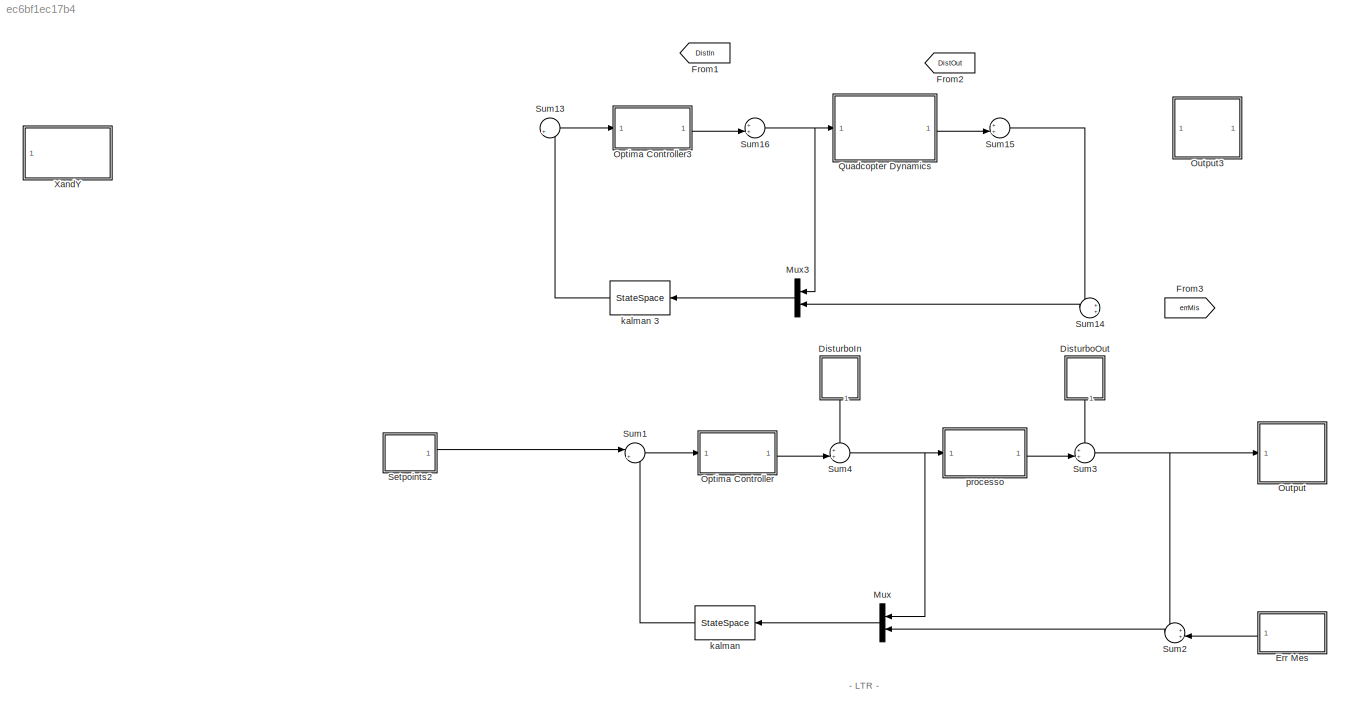
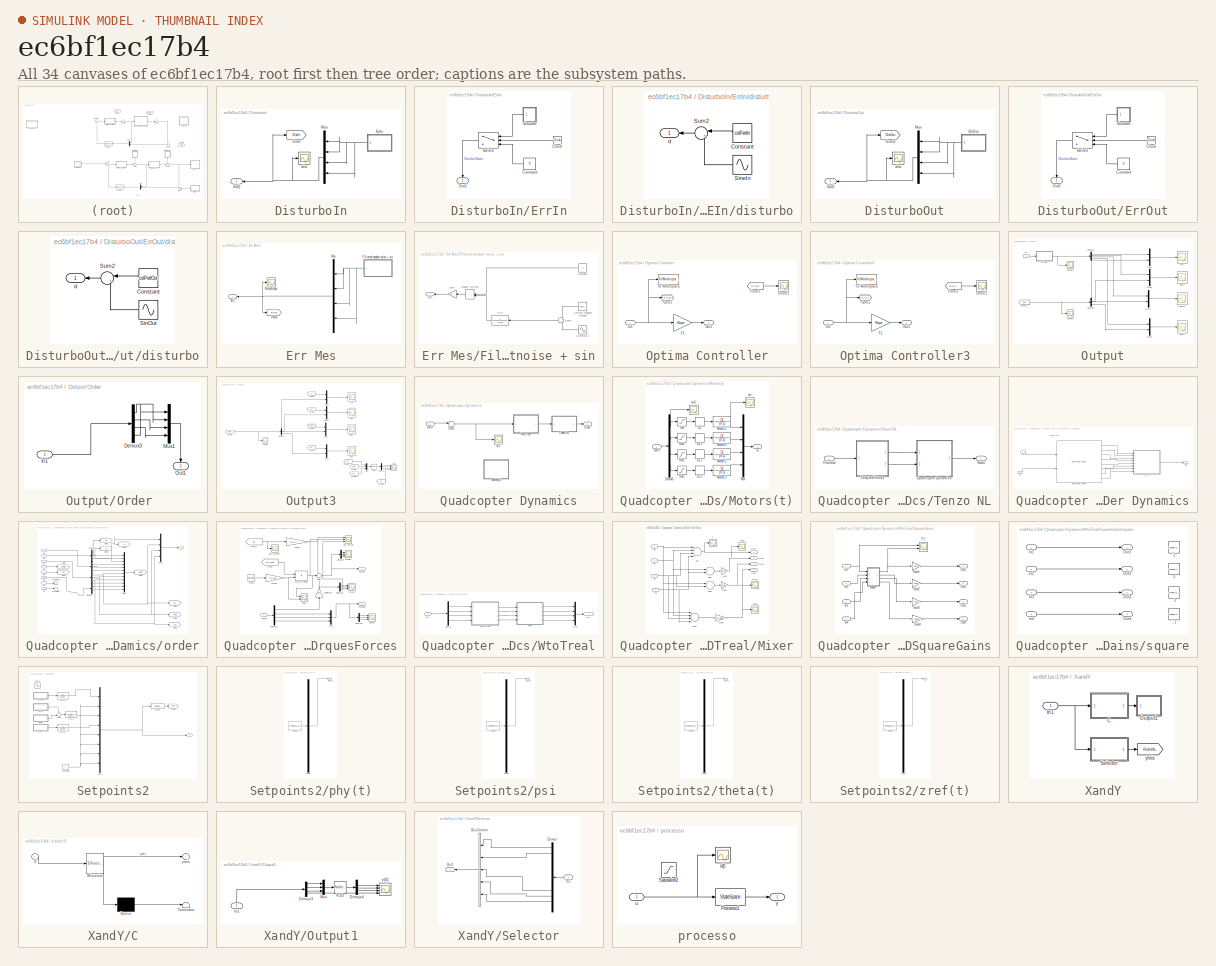
[diagram: thumbnail index - all 34 canvases of the model, root first then tree order]
MODEL slx_ec6bf1ec17b4
KIND model
CONFIG AbsTol = auto
CONFIG EnableMultiTasking = on
CONFIG FixedStep = auto
CONFIG MaxStep = auto
CONFIG MinStep = auto
CONFIG RelTol = 1e-3
CONFIG SampleTimeConstraint = Unconstrained
CONFIG Solver = ode45
CONFIG SolverName = ode45
CONFIG StartTime = 0.0
CONFIG StopTime = 10
BLOCK [StateSpace]  kalman 
  A = KAoss
  B = KBossw
  C = KCoss
  D = KDoss
  Ports = [1, 1]
  X0 = 0
BLOCK [StateSpace]  kalman 3
  A = KAoss
  B = KBossw
  C = KCoss
  D = KDoss
  Ports = [1, 1]
  X0 = 0
BLOCK [SubSystem] DisturboIn
  Ports = [0, 1]
  RequestExecContextInheritance = off
  Variant = off
BLOCK [SubSystem] DisturboIn/ErrIn
  Ports = [0, 1]
  RequestExecContextInheritance = off
  Variant = off
BLOCK [Clock] DisturboIn/ErrIn/Clock
BLOCK [Constant] DisturboIn/ErrIn/Constant
  Value = 0
BLOCK [Outport] DisturboIn/ErrIn/Out1
  IconDisplay = Port number
BLOCK [Switch] DisturboIn/ErrIn/Switch
  InputSameDT = off
  SaturateOnIntegerOverflow = off
  Threshold = 5
BLOCK [SubSystem] DisturboIn/ErrIn/disturbo
  Ports = [0, 1]
  RequestExecContextInheritance = off
  Variant = off
BLOCK [Constant] DisturboIn/ErrIn/disturbo/Constant
  Value = cstPertIn
BLOCK [Sin] DisturboIn/ErrIn/disturbo/SineIn
  Amplitude = amplitudePertIn
  Frequency = omegaPertIN
  Ports = [0, 1]
  SampleTime = 0
BLOCK [Sum] DisturboIn/ErrIn/disturbo/Sum2
  IconShape = round
  InputSameDT = off
  Inputs = |++
  OutDataTypeStr = Inherit: Inherit via internal rule
  Ports = [2, 1]
  SaturateOnIntegerOverflow = off
BLOCK [Outport] DisturboIn/ErrIn/disturbo/d
  IconDisplay = Port number
BLOCK [Goto] DisturboIn/Goto
  GotoTag = DistIn
  TagVisibility = global
BLOCK [Mux] DisturboIn/Mux
  DisplayOption = bar
  Inputs = [1 1 1 1]
  Ports = [4, 1]
BLOCK [Scope] DisturboIn/dist
  NumInputPorts = 1
  Ports = [1]
  ScopeSpecificationString = C++SS(StrPVP('Location','[71, 119, 1081, 656]'),StrPVP('Open','off'),MxPVP('AxesTitles',53,'struct(''axes1'',''%<SignalLabel>'')'),MxPVP('ScopeGraphics',56,'struct(''FigureColor'',''[0.5 0.5 0.5]'',''AxesColor'',''[0 0 0]'',''AxesTickColor'',''[1 1 1]'',''LineColors'',''[1 1 0;1 0 1;0 1 1;1 0 0;0 1 0;0 0 1]'',''LineStyles'',''-|-|-|-|-|-'',''LineWidths'',''[0.5 0.5 0.5 0.5 0.5 0.5]'',''MarkerStyle...<+314ch>
BLOCK [Outport] DisturboIn/du(t)
  IconDisplay = Port number
BLOCK [SubSystem] DisturboOut
  Ports = [0, 1]
  RequestExecContextInheritance = off
  Variant = off
BLOCK [SubSystem] DisturboOut/ErrOut
  Ports = [0, 1]
  RequestExecContextInheritance = off
  Variant = off
BLOCK [Clock] DisturboOut/ErrOut/Clock
BLOCK [Constant] DisturboOut/ErrOut/Constant
  Value = 0
BLOCK [Outport] DisturboOut/ErrOut/Out1
  IconDisplay = Port number
BLOCK [Switch] DisturboOut/ErrOut/Switch
  InputSameDT = off
  SaturateOnIntegerOverflow = off
  Threshold = 5
BLOCK [SubSystem] DisturboOut/ErrOut/disturbo
  Ports = [0, 1]
  RequestExecContextInheritance = off
  Variant = off
BLOCK [Constant] DisturboOut/ErrOut/disturbo/Constant
  Value = cstPertOut
BLOCK [Sin] DisturboOut/ErrOut/disturbo/SinOut
  Amplitude = amplitudePertOut
  Frequency = omegaPertOut
  Ports = [0, 1]
  SampleTime = 0
BLOCK [Sum] DisturboOut/ErrOut/disturbo/Sum2
  IconShape = round
  InputSameDT = off
  Inputs = |++
  OutDataTypeStr = Inherit: Inherit via internal rule
  Ports = [2, 1]
  SaturateOnIntegerOverflow = off
BLOCK [Outport] DisturboOut/ErrOut/disturbo/d
  IconDisplay = Port number
BLOCK [Goto] DisturboOut/Goto2
  GotoTag = DistOut
  TagVisibility = global
BLOCK [Mux] DisturboOut/Mux
  DisplayOption = bar
  Inputs = [1 1 1 1]
  Ports = [4, 1]
BLOCK [Scope] DisturboOut/dist
  NumInputPorts = 1
  Ports = [1]
  ScopeSpecificationString = C++SS(StrPVP('Location','[76, 122, 1076, 657]'),StrPVP('Open','off'),MxPVP('AxesTitles',53,'struct(''axes1'',''%<SignalLabel>'')'),MxPVP('ScopeGraphics',56,'struct(''FigureColor'',''[0.5 0.5 0.5]'',''AxesColor'',''[0 0 0]'',''AxesTickColor'',''[1 1 1]'',''LineColors'',''[1 1 0;1 0 1;0 1 1;1 0 0;0 1 0;0 0 1]'',''LineStyles'',''-|-|-|-|-|-'',''LineWidths'',''[0.5 0.5 0.5 0.5 0.5 0.5]'',''MarkerStyle...<+310ch>
BLOCK [Outport] DisturboOut/dy(t) 
  IconDisplay = Port number
BLOCK [SubSystem] Err Mes
  Ports = [0, 1]
  RequestExecContextInheritance = off
  Variant = off
BLOCK [Outport] Err Mes/  d(t)
  IconDisplay = Port number
BLOCK [SubSystem] Err Mes/Filtered random noise + sin
  Ports = [0, 1]
  RequestExecContextInheritance = off
  Variant = off
BLOCK [Sin] Err Mes/Filtered random noise + sin/0.2 sen(0.5 t)
  Amplitude = amplitudeNoise
  Frequency = omegaNoise
  Phase = 1
  Ports = [0, 1]
  SampleTime = 0
BLOCK [Constant] Err Mes/Filtered random noise + sin/Constant1
  Value = 0
BLOCK [Gain] Err Mes/Filtered random noise + sin/Gain
  OutDataTypeStr = Inherit: Inherit via internal rule
  ParamDataTypeStr = Inherit: Inherit via internal rule
  SaturateOnIntegerOverflow = off
BLOCK [ManualSwitch] Err Mes/Filtered random noise + sin/Manual Switch1
  CurrentSetting = 0
BLOCK [TransferFcn] Err Mes/Filtered random noise + sin/P(s)1
  Denominator = [1 9]
  Numerator = 1
BLOCK [Sum] Err Mes/Filtered random noise + sin/Sum3
  IconShape = round
  InputSameDT = off
  OutDataTypeStr = Inherit: Inherit via internal rule
  Ports = [2, 1]
  SaturateOnIntegerOverflow = off
BLOCK [UniformRandomNumber] Err Mes/Filtered random noise + sin/Uniform Random Number
  Maximum = randomAmpNoise
  Minimum = -randomAmpNoise
  SampleTime = 0.1
BLOCK [Outport] Err Mes/Filtered random noise + sin/n(t)
  IconDisplay = Port number
BLOCK [Goto] Err Mes/Goto2
  GotoTag = errMis
  TagVisibility = global
BLOCK [Mux] Err Mes/Mux
  DisplayOption = bar
  Inputs = [1 1 1 1]
  Ports = [4, 1]
BLOCK [Scope] Err Mes/NoiseScope
  NumInputPorts = 1
  Ports = [1]
  ScopeSpecificationString = C++SS(StrPVP('Location','[71, 155, 689, 419]'),StrPVP('Open','off'),MxPVP('AxesTitles',53,'struct(''axes1'',''%<SignalLabel>'')'),MxPVP('ScopeGraphics',56,'struct(''FigureColor'',''[0.5 0.5 0.5]'',''AxesColor'',''[0 0 0]'',''AxesTickColor'',''[1 1 1]'',''LineColors'',''[1 1 0;1 0 1;0 1 1;1 0 0;0 1 0;0 0 1]'',''LineStyles'',''-|-|-|-|-|-'',''LineWidths'',''[0.5 0.5 0.5 0.5 0.5 0.5]'',''MarkerStyles...<+291ch>
BLOCK [From] From1
  GotoTag = DistIn
  TagVisibility = global
BLOCK [From] From2
  GotoTag = DistOut
  TagVisibility = global
BLOCK [From] From3
  GotoTag = errMis
  TagVisibility = global
BLOCK [Mux] Mux
  DisplayOption = bar
  Inputs = 2
  Ports = [2, 1]
BLOCK [Mux] Mux3
  DisplayOption = bar
  Inputs = 2
  Ports = [2, 1]
BLOCK [SubSystem] Optima Controller
  Ports = [1, 1]
  RequestExecContextInheritance = off
  Variant = off
BLOCK [Gain] Optima Controller/F1
  Gain = Kopt
  Multiplication = Matrix(K*u) (u vector)
  OutDataTypeStr = Inherit: Inherit via internal rule
  ParamDataTypeStr = Inherit: Inherit via internal rule
  SaturateOnIntegerOverflow = off
BLOCK [From] Optima Controller/From3
  GotoTag = ErrLTR
  TagVisibility = global
BLOCK [Goto] Optima Controller/Goto1
  GotoTag = ErrLTR
  TagVisibility = global
BLOCK [Inport] Optima Controller/In1
  IconDisplay = Port number
BLOCK [Outport] Optima Controller/Out1
  IconDisplay = Port number
BLOCK [ToWorkspace] Optima Controller/To Workspace
  MaxDataPoints = inf
  Ports = [1]
  SampleTime = -1
  SaveFormat = Structure
  VariableName = errSimLTR
BLOCK [Scope] Optima Controller/errore1
  NumInputPorts = 1
  Ports = [1]
  ScopeSpecificationString = C++SS(StrPVP('Location','[71, 94, 1081, 628]'),StrPVP('Open','off'),StrPVP('ZoomMode','xonly'),MxPVP('AxesTitles',53,'struct(''axes1'',''%<SignalLabel>'')'),MxPVP('ScopeGraphics',56,'struct(''FigureColor'',''[0.5 0.5 0.5]'',''AxesColor'',''[0 0 0]'',''AxesTickColor'',''[1 1 1]'',''LineColors'',''[1 1 0;1 0 1;0 1 1;1 0 0;0 1 0;0 0 1]'',''LineStyles'',''-|-|-|-|-|-'',''LineWidths'',''[0.5 0.5 0.5 0....<+338ch>
BLOCK [SubSystem] Optima Controller3
  Ports = [1, 1]
  RequestExecContextInheritance = off
  Variant = off
BLOCK [Gain] Optima Controller3/F1
  Gain = Kopt
  Multiplication = Matrix(K*u) (u vector)
  OutDataTypeStr = Inherit: Inherit via internal rule
  ParamDataTypeStr = Inherit: Inherit via internal rule
  SaturateOnIntegerOverflow = off
BLOCK [From] Optima Controller3/From3
  GotoTag = ErrNL
  TagVisibility = global
BLOCK [Goto] Optima Controller3/Goto1
  GotoTag = ErrNL
  TagVisibility = global
BLOCK [Inport] Optima Controller3/In1
  IconDisplay = Port number
BLOCK [Outport] Optima Controller3/Out1
  IconDisplay = Port number
BLOCK [ToWorkspace] Optima Controller3/To Workspace
  MaxDataPoints = inf
  Ports = [1]
  SampleTime = -1
  SaveFormat = Structure
  VariableName = errSim
BLOCK [Scope] Optima Controller3/errore1
  NumInputPorts = 1
  Ports = [1]
  ScopeSpecificationString = C++SS(StrPVP('Location','[76, 94, 1076, 626]'),StrPVP('Open','off'),StrPVP('ZoomMode','xonly'),MxPVP('AxesTitles',53,'struct(''axes1'',''%<SignalLabel>'')'),MxPVP('ScopeGraphics',56,'struct(''FigureColor'',''[0.5 0.5 0.5]'',''AxesColor'',''[0 0 0]'',''AxesTickColor'',''[1 1 1]'',''LineColors'',''[1 1 0;1 0 1;0 1 1;1 0 0;0 1 0;0 0 1]'',''LineStyles'',''-|-|-|-|-|-'',''LineWidths'',''[0.5 0.5 0.5 0....<+338ch>
BLOCK [SubSystem] Output
  Ports = [1]
  RequestExecContextInheritance = off
  Variant = off
BLOCK [Demux] Output/Demux1
  DisplayOption = bar
  Ports = [1, 4]
BLOCK [Demux] Output/Demux2
  DisplayOption = bar
  Ports = [1, 4]
BLOCK [From] Output/From2
  GotoTag = Refs
  TagVisibility = global
BLOCK [Mux] Output/Mux2
  DisplayOption = bar
  Inputs = 2
  Ports = [2, 1]
BLOCK [Mux] Output/Mux3
  DisplayOption = bar
  Inputs = 2
  Ports = [2, 1]
BLOCK [Mux] Output/Mux4
  DisplayOption = bar
  Inputs = 2
  Ports = [2, 1]
BLOCK [Mux] Output/Mux5
  DisplayOption = bar
  Inputs = 2
  Ports = [2, 1]
BLOCK [SubSystem] Output/Order 
  Ports = [1, 1]
  RequestExecContextInheritance = off
  Variant = off
BLOCK [Demux] Output/Order /Demux3
  DisplayOption = bar
  Ports = [1, 4]
BLOCK [Inport] Output/Order /In1
  IconDisplay = Port number
BLOCK [Mux] Output/Order /Mux1
  DisplayOption = bar
  Ports = [4, 1]
BLOCK [Outport] Output/Order /Out1
  IconDisplay = Port number
BLOCK [Scope] Output/phi(t)
  NumInputPorts = 1
  Ports = [1]
  ScopeSpecificationString = C++SS(StrPVP('Location','[171, 195, 1181, 732]'),StrPVP('Open','off'),StrPVP('TickLabels','on'),MxPVP('AxesTitles',53,'struct(''axes1'',''%<SignalLabel>'')'),MxPVP('ScopeGraphics',56,'struct(''FigureColor'',''[0.501960784313725 0.501960784313725 0.501960784313725]'',''AxesColor'',''[0 0 0]'',''AxesTickColor'',''[1 1 1]'',''LineColors'',''[1 1 0;1 0 1;0 1 1;1 0 0;0 1 0;0 0 1]'',''LineStyles'',''-|-...<+406ch>
BLOCK [Scope] Output/psi(t)
  NumInputPorts = 1
  Ports = [1]
  ScopeSpecificationString = C++SS(StrPVP('Location','[206, 278, 1206, 757]'),StrPVP('Open','off'),StrPVP('TickLabels','on'),MxPVP('AxesTitles',53,'struct(''axes1'',''%<SignalLabel>'')'),MxPVP('ScopeGraphics',56,'struct(''FigureColor'',''[0.501960784313725 0.501960784313725 0.501960784313725]'',''AxesColor'',''[0 0 0]'',''AxesTickColor'',''[1 1 1]'',''LineColors'',''[1 1 0;1 0 1;0 1 1;1 0 0;0 1 0;0 0 1]'',''LineStyles'',''-|-...<+384ch>
BLOCK [Scope] Output/theta(t)
  NumInputPorts = 1
  Ports = [1]
  ScopeSpecificationString = C++SS(StrPVP('Location','[211, 110, 1231, 621]'),StrPVP('Open','off'),StrPVP('TickLabels','on'),StrPVP('ZoomMode','yonly'),MxPVP('AxesTitles',53,'struct(''axes1'',''%<SignalLabel>'')'),MxPVP('ScopeGraphics',56,'struct(''FigureColor'',''[0.501960784313725 0.501960784313725 0.501960784313725]'',''AxesColor'',''[0 0 0]'',''AxesTickColor'',''[1 1 1]'',''LineColors'',''[1 1 0;1 0 1;0 1 1;1 0 0;0 1 0;0 ...<+381ch>
BLOCK [Scope] Output/uscite4
  NumInputPorts = 1
  Ports = [1]
  ScopeSpecificationString = C++SS(StrPVP('Location','[76, 91, 1096, 627]'),StrPVP('Open','off'),MxPVP('AxesTitles',53,'struct(''axes1'',''%<SignalLabel>'')'),MxPVP('ScopeGraphics',56,'struct(''FigureColor'',''[0.5 0.5 0.5]'',''AxesColor'',''[0 0 0]'',''AxesTickColor'',''[1 1 1]'',''LineColors'',''[1 1 0;1 0 1;0 1 1;1 0 0;0 1 0;0 0 1]'',''LineStyles'',''-|-|-|-|-|-'',''LineWidths'',''[0.5 0.5 0.5 0.5 0.5 0.5]'',''MarkerStyles...<+312ch>
BLOCK [Scope] Output/uscite5
  NumInputPorts = 1
  Ports = [1]
  ScopeSpecificationString = C++SS(StrPVP('Location','[76, 81, 1076, 613]'),StrPVP('Open','off'),MxPVP('AxesTitles',53,'struct(''axes1'',''%<SignalLabel>'')'),MxPVP('ScopeGraphics',56,'struct(''FigureColor'',''[0.5 0.5 0.5]'',''AxesColor'',''[0 0 0]'',''AxesTickColor'',''[1 1 1]'',''LineColors'',''[1 1 0;1 0 1;0 1 1;1 0 0;0 1 0;0 0 1]'',''LineStyles'',''-|-|-|-|-|-'',''LineWidths'',''[0.5 0.5 0.5 0.5 0.5 0.5]'',''MarkerStyles...<+312ch>
BLOCK [Inport] Output/y(t)
  IconDisplay = Port number
BLOCK [Scope] Output/z(t)
  NumInputPorts = 1
  Ports = [1]
  ScopeSpecificationString = C++SS(StrPVP('Location','[71, 174, 1061, 651]'),StrPVP('Open','off'),StrPVP('TickLabels','on'),MxPVP('AxesTitles',53,'struct(''axes1'',''%<SignalLabel>'')'),MxPVP('ScopeGraphics',56,'struct(''FigureColor'',''[0.501960784313725 0.501960784313725 0.501960784313725]'',''AxesColor'',''[0 0 0]'',''AxesTickColor'',''[1 1 1]'',''LineColors'',''[0.0392156862745098 0.141176470588235 0.415686274509804;0 1 0...<+399ch>
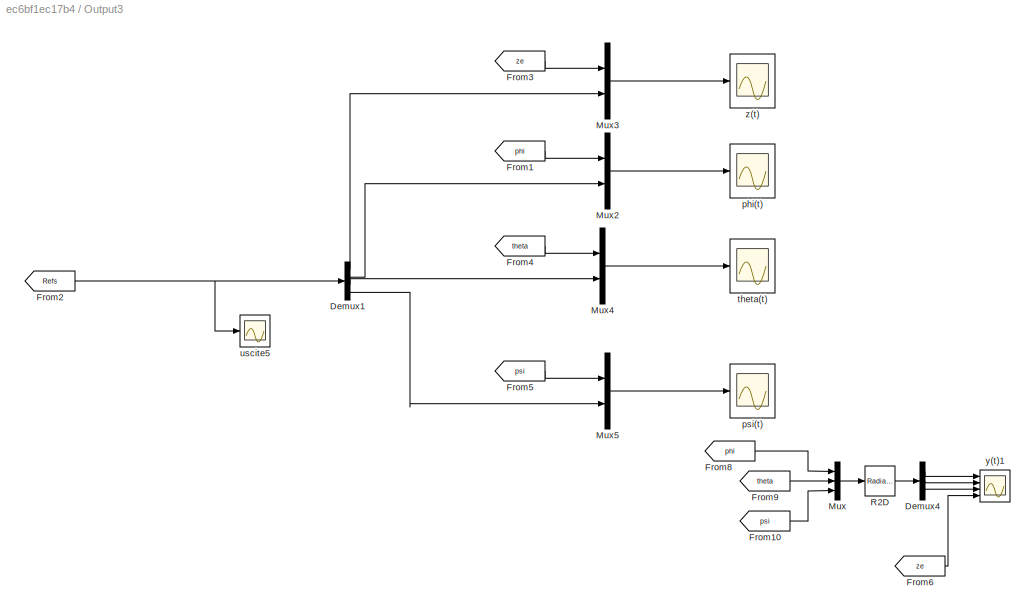
BLOCK [SubSystem] Output3
  Ports = []
  RequestExecContextInheritance = off
  Variant = off
BLOCK [Demux] Output3/Demux1
  DisplayOption = bar
  Ports = [1, 4]
BLOCK [Demux] Output3/Demux4
  DisplayOption = bar
  Outputs = 3
  Ports = [1, 3]
BLOCK [From] Output3/From1
  GotoTag = phi
  TagVisibility = global
BLOCK [From] Output3/From10
  GotoTag = psi
  TagVisibility = global
BLOCK [From] Output3/From2
  GotoTag = Refs
  TagVisibility = global
BLOCK [From] Output3/From3
  GotoTag = ze
  TagVisibility = global
BLOCK [From] Output3/From4
  GotoTag = theta
  TagVisibility = global
BLOCK [From] Output3/From5
  GotoTag = psi
  TagVisibility = global
BLOCK [From] Output3/From6
  GotoTag = ze
  TagVisibility = global
BLOCK [From] Output3/From8
  GotoTag = phi
  TagVisibility = global
BLOCK [From] Output3/From9
  GotoTag = theta
  TagVisibility = global
BLOCK [Mux] Output3/Mux
  DisplayOption = bar
  Inputs = 3
  Ports = [3, 1]
BLOCK [Mux] Output3/Mux2
  DisplayOption = bar
  Inputs = 2
  Ports = [2, 1]
BLOCK [Mux] Output3/Mux3
  DisplayOption = bar
  Inputs = 2
  Ports = [2, 1]
BLOCK [Mux] Output3/Mux4
  DisplayOption = bar
  Inputs = 2
  Ports = [2, 1]
BLOCK [Mux] Output3/Mux5
  DisplayOption = bar
  Inputs = 2
  Ports = [2, 1]
BLOCK [Reference] Output3/R2D  REF=simulink_extras/Transformations/Radians
to Degrees
  Ports = [1, 1]
  SourceBlock = simulink_extras/Transformations/Radians\nto Degrees
  SourceProductBaseCode = SL
  SourceProductName = Simulink
  SourceType = RadiansToDegrees
BLOCK [Scope] Output3/phi(t)
  NumInputPorts = 1
  Ports = [1]
  ScopeSpecificationString = C++SS(StrPVP('Location','[171, 167, 1171, 702]'),StrPVP('Open','off'),StrPVP('TickLabels','on'),MxPVP('AxesTitles',53,'struct(''axes1'',''%<SignalLabel>'')'),MxPVP('ScopeGraphics',56,'struct(''FigureColor'',''[0.501960784313725 0.501960784313725 0.501960784313725]'',''AxesColor'',''[0 0 0]'',''AxesTickColor'',''[1 1 1]'',''LineColors'',''[1 1 0;1 0 1;0 1 1;1 0 0;0 1 0;0 0 1]'',''LineStyles'',''-|-...<+406ch>
BLOCK [Scope] Output3/psi(t)
  NumInputPorts = 1
  Ports = [1]
  ScopeSpecificationString = C++SS(StrPVP('Location','[206, 278, 1206, 757]'),StrPVP('Open','off'),StrPVP('TickLabels','on'),MxPVP('AxesTitles',53,'struct(''axes1'',''%<SignalLabel>'')'),MxPVP('ScopeGraphics',56,'struct(''FigureColor'',''[0.501960784313725 0.501960784313725 0.501960784313725]'',''AxesColor'',''[0 0 0]'',''AxesTickColor'',''[1 1 1]'',''LineColors'',''[1 1 0;1 0 1;0 1 1;1 0 0;0 1 0;0 0 1]'',''LineStyles'',''-|-...<+384ch>
BLOCK [Scope] Output3/theta(t)
  NumInputPorts = 1
  Ports = [1]
  ScopeSpecificationString = C++SS(StrPVP('Location','[211, 110, 1231, 621]'),StrPVP('Open','off'),StrPVP('TickLabels','on'),StrPVP('ZoomMode','yonly'),MxPVP('AxesTitles',53,'struct(''axes1'',''%<SignalLabel>'')'),MxPVP('ScopeGraphics',56,'struct(''FigureColor'',''[0.501960784313725 0.501960784313725 0.501960784313725]'',''AxesColor'',''[0 0 0]'',''AxesTickColor'',''[1 1 1]'',''LineColors'',''[1 1 0;1 0 1;0 1 1;1 0 0;0 1 0;0 ...<+381ch>
BLOCK [Scope] Output3/uscite5
  NumInputPorts = 1
  Ports = [1]
  ScopeSpecificationString = C++SS(StrPVP('Location','[76, 81, 1076, 613]'),StrPVP('Open','off'),MxPVP('AxesTitles',53,'struct(''axes1'',''%<SignalLabel>'')'),MxPVP('ScopeGraphics',56,'struct(''FigureColor'',''[0.5 0.5 0.5]'',''AxesColor'',''[0 0 0]'',''AxesTickColor'',''[1 1 1]'',''LineColors'',''[1 1 0;1 0 1;0 1 1;1 0 0;0 1 0;0 0 1]'',''LineStyles'',''-|-|-|-|-|-'',''LineWidths'',''[0.5 0.5 0.5 0.5 0.5 0.5]'',''MarkerStyles...<+312ch>
BLOCK [Scope] Output3/y(t)1
  NumInputPorts = 4
  Ports = [4]
  ScopeSpecificationString = C++SS(StrPVP('Location','[54, 53, 1367, 767]'),StrPVP('Open','off'),MxPVP('AxesTitles',53,'struct(''axes1'',''%<SignalLabel>'',''axes2'',''%<SignalLabel>'',''axes3'',''%<SignalLabel>'',''axes4'',''%<SignalLabel>'')'),MxPVP('ScopeGraphics',56,'struct(''FigureColor'',''[0.501960784313725 0.501960784313725 0.501960784313725]'',''AxesColor'',''[0 0 0]'',''AxesTickColor'',''[1 1 1]'',''LineColors'',''[...<+475ch>
BLOCK [Scope] Output3/z(t)
  NumInputPorts = 1
  Ports = [1]
  ScopeSpecificationString = C++SS(StrPVP('Location','[-1295, 174, -315, 649]'),StrPVP('Open','off'),StrPVP('TickLabels','on'),MxPVP('AxesTitles',53,'struct(''axes1'',''%<SignalLabel>'')'),MxPVP('ScopeGraphics',56,'struct(''FigureColor'',''[0.501960784313725 0.501960784313725 0.501960784313725]'',''AxesColor'',''[0 0 0]'',''AxesTickColor'',''[1 1 1]'',''LineColors'',''[0.0392156862745098 0.141176470588235 0.415686274509804;0 ...<+398ch>
BLOCK [SubSystem] Quadcopter Dynamics
  Ports = [1, 1]
  RequestExecContextInheritance = off
  Variant = off
BLOCK [SubSystem] Quadcopter Dynamics/Motors(t)
  Ports = [1, 1]
  RequestExecContextInheritance = off
  Variant = off
BLOCK [DeadZone] Quadcopter Dynamics/Motors(t)/DZ
  LowerValue = 0
  UpperValue = 10
BLOCK [DeadZone] Quadcopter Dynamics/Motors(t)/DZ1
  LowerValue = 0
  UpperValue = 300
BLOCK [DeadZone] Quadcopter Dynamics/Motors(t)/DZ2
  LowerValue = 0
  UpperValue = 300
BLOCK [DeadZone] Quadcopter Dynamics/Motors(t)/DZ3
  LowerValue = 0
  UpperValue = 300
BLOCK [Demux] Quadcopter Dynamics/Motors(t)/Demux5
  DisplayOption = bar
  Ports = [1, 4]
BLOCK [TransferFcn] Quadcopter Dynamics/Motors(t)/Motore 1
  Denominator = [tc 1]
BLOCK [TransferFcn] Quadcopter Dynamics/Motors(t)/Motore 2
  Denominator = [tc 1]
BLOCK [TransferFcn] Quadcopter Dynamics/Motors(t)/Motore 3
  Denominator = [tc 1]
BLOCK [TransferFcn] Quadcopter Dynamics/Motors(t)/Motore 4
  Denominator = [tc 1]
BLOCK [Mux] Quadcopter Dynamics/Motors(t)/Mux
  DisplayOption = bar
  Ports = [4, 1]
BLOCK [Saturate] Quadcopter Dynamics/Motors(t)/Sat
  InputPortMap = u0
  LowerLimit = 0
  Ports = [1, 1]
  UpperLimit = 10000
BLOCK [Saturate] Quadcopter Dynamics/Motors(t)/Sat1
  InputPortMap = u0
  LowerLimit = 0
  Ports = [1, 1]
  UpperLimit = 10000
BLOCK [Saturate] Quadcopter Dynamics/Motors(t)/Sat2
  InputPortMap = u0
  LowerLimit = 0
  Ports = [1, 1]
  UpperLimit = 10000
BLOCK [Saturate] Quadcopter Dynamics/Motors(t)/Sat3
  InputPortMap = u0
  LowerLimit = 0
  Ports = [1, 1]
  UpperLimit = 10000
BLOCK [Outport] Quadcopter Dynamics/Motors(t)/w
  IconDisplay = Port number
BLOCK [Inport] Quadcopter Dynamics/Motors(t)/wRif
  IconDisplay = Port number
BLOCK [Scope] Quadcopter Dynamics/Motors(t)/ws
  NumInputPorts = 1
  Ports = [1]
  ScopeSpecificationString = C++SS(StrPVP('Location','[66, 53, 1367, 767]'),StrPVP('Open','off'),MxPVP('AxesTitles',53,'struct(''axes1'',''%<SignalLabel>'')'),MxPVP('ScopeGraphics',56,'struct(''FigureColor'',''[0.501960784313725 0.501960784313725 0.501960784313725]'',''AxesColor'',''[0 0 0]'',''AxesTickColor'',''[1 1 1]'',''LineColors'',''[0 1 0;1 0 1;0 1 1;1 0 0;0 1 0;0 0 1]'',''LineStyles'',''-|-|-|-|-|-'',''LineWidths'',''...<+334ch>
BLOCK [Scope] Quadcopter Dynamics/Motors(t)/ws1
  NumInputPorts = 1
  Ports = [1]
  ScopeSpecificationString = C++SS(StrPVP('Location','[66, 53, 1367, 767]'),StrPVP('Open','off'),MxPVP('AxesTitles',53,'struct(''axes1'',''%<SignalLabel>'')'),MxPVP('ScopeGraphics',56,'struct(''FigureColor'',''[0.501960784313725 0.501960784313725 0.501960784313725]'',''AxesColor'',''[0 0 0]'',''AxesTickColor'',''[1 1 1]'',''LineColors'',''[0 1 0;1 0 1;0 1 1;1 0 0;0 1 0;0 0 1]'',''LineStyles'',''-|-|-|-|-|-'',''LineWidths'',''...<+301ch>
BLOCK [Outport] Quadcopter Dynamics/State
  IconDisplay = Port number
BLOCK [Sum] Quadcopter Dynamics/Sum1
  IconShape = round
  InputSameDT = off
  Inputs = |++
  OutDataTypeStr = Inherit: Inherit via internal rule
  Ports = [2, 1]
  SaturateOnIntegerOverflow = off
BLOCK [SubSystem] Quadcopter Dynamics/Tenzo NL
  Ports = [1, 1]
  RequestExecContextInheritance = off
  Variant = off
BLOCK [SubSystem] Quadcopter Dynamics/Tenzo NL/Quadcopter Dynamics
  Ports = [2, 1]
  RequestExecContextInheritance = off
  Variant = off
BLOCK [Reference] Quadcopter Dynamics/Tenzo NL/Quadcopter Dynamics/6DoF (Euler Angles)  REF=aerolibobsolete/6DoF (Euler Angles)
  Ports = [2, 8]
  SourceBlock = aerolibobsolete/6DoF (Euler Angles)
  SourceProductBaseCode = AE
  SourceProductName = Aerospace Blockset
  SourceType = 6DoF EoM (Body Axis)
BLOCK [Inport] Quadcopter Dynamics/Tenzo NL/Quadcopter Dynamics/In1
  IconDisplay = Port number
BLOCK [Inport] Quadcopter Dynamics/Tenzo NL/Quadcopter Dynamics/In2
  IconDisplay = Port number
  Port = 2
BLOCK [Outport] Quadcopter Dynamics/Tenzo NL/Quadcopter Dynamics/Out1
  IconDisplay = Port number
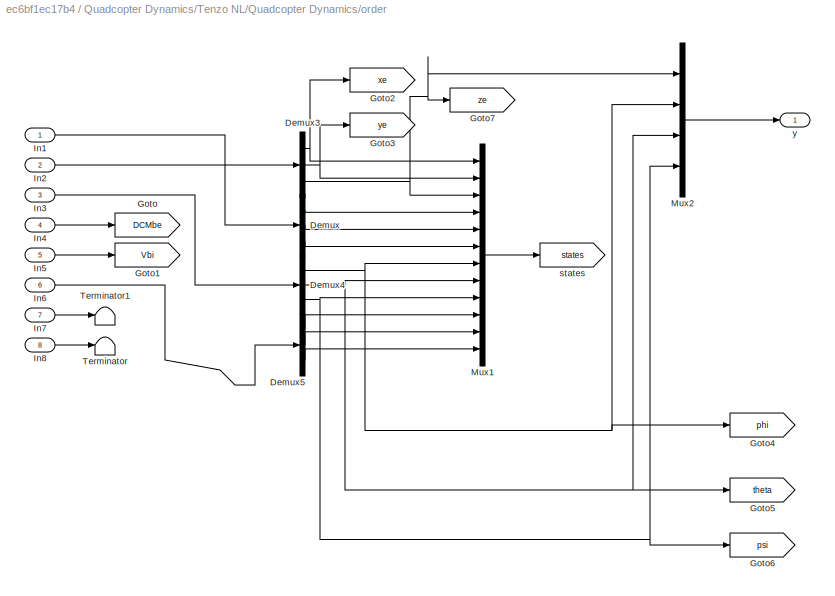
BLOCK [SubSystem] Quadcopter Dynamics/Tenzo NL/Quadcopter Dynamics/order
  Ports = [8, 1]
  RequestExecContextInheritance = off
  Variant = off
BLOCK [Demux] Quadcopter Dynamics/Tenzo NL/Quadcopter Dynamics/order/Demux
  DisplayOption = bar
  Outputs = 3
  Ports = [1, 3]
BLOCK [Demux] Quadcopter Dynamics/Tenzo NL/Quadcopter Dynamics/order/Demux3
  DisplayOption = bar
  Outputs = 3
  Ports = [1, 3]
BLOCK [Demux] Quadcopter Dynamics/Tenzo NL/Quadcopter Dynamics/order/Demux4
  DisplayOption = bar
  Outputs = 3
  Ports = [1, 3]
BLOCK [Demux] Quadcopter Dynamics/Tenzo NL/Quadcopter Dynamics/order/Demux5
  DisplayOption = bar
  Outputs = 3
  Ports = [1, 3]
BLOCK [Goto] Quadcopter Dynamics/Tenzo NL/Quadcopter Dynamics/order/Goto
  GotoTag = DCMbe
BLOCK [Goto] Quadcopter Dynamics/Tenzo NL/Quadcopter Dynamics/order/Goto1
  GotoTag = Vbi
BLOCK [Goto] Quadcopter Dynamics/Tenzo NL/Quadcopter Dynamics/order/Goto2
  GotoTag = xe
BLOCK [Goto] Quadcopter Dynamics/Tenzo NL/Quadcopter Dynamics/order/Goto3
  GotoTag = ye
BLOCK [Goto] Quadcopter Dynamics/Tenzo NL/Quadcopter Dynamics/order/Goto4
  GotoTag = phi
  TagVisibility = global
BLOCK [Goto] Quadcopter Dynamics/Tenzo NL/Quadcopter Dynamics/order/Goto5
  GotoTag = theta
  TagVisibility = global
BLOCK [Goto] Quadcopter Dynamics/Tenzo NL/Quadcopter Dynamics/order/Goto6
  GotoTag = psi
  TagVisibility = global
BLOCK [Goto] Quadcopter Dynamics/Tenzo NL/Quadcopter Dynamics/order/Goto7
  GotoTag = ze
  TagVisibility = global
BLOCK [Inport] Quadcopter Dynamics/Tenzo NL/Quadcopter Dynamics/order/In1
  IconDisplay = Port number
BLOCK [Inport] Quadcopter Dynamics/Tenzo NL/Quadcopter Dynamics/order/In2
  IconDisplay = Port number
  Port = 2
BLOCK [Inport] Quadcopter Dynamics/Tenzo NL/Quadcopter Dynamics/order/In3
  IconDisplay = Port number
  Port = 3
BLOCK [Inport] Quadcopter Dynamics/Tenzo NL/Quadcopter Dynamics/order/In4
  IconDisplay = Port number
  Port = 4
BLOCK [Inport] Quadcopter Dynamics/Tenzo NL/Quadcopter Dynamics/order/In5
  IconDisplay = Port number
  Port = 5
BLOCK [Inport] Quadcopter Dynamics/Tenzo NL/Quadcopter Dynamics/order/In6
  IconDisplay = Port number
  Port = 6
BLOCK [Inport] Quadcopter Dynamics/Tenzo NL/Quadcopter Dynamics/order/In7
  IconDisplay = Port number
  Port = 7
BLOCK [Inport] Quadcopter Dynamics/Tenzo NL/Quadcopter Dynamics/order/In8
  IconDisplay = Port number
  Port = 8
BLOCK [Mux] Quadcopter Dynamics/Tenzo NL/Quadcopter Dynamics/order/Mux1
  DisplayOption = bar
  Inputs = 12
  Ports = [12, 1]
BLOCK [Mux] Quadcopter Dynamics/Tenzo NL/Quadcopter Dynamics/order/Mux2
  DisplayOption = bar
  Ports = [4, 1]
BLOCK [Terminator] Quadcopter Dynamics/Tenzo NL/Quadcopter Dynamics/order/Terminator
BLOCK [Terminator] Quadcopter Dynamics/Tenzo NL/Quadcopter Dynamics/order/Terminator1
BLOCK [Goto] Quadcopter Dynamics/Tenzo NL/Quadcopter Dynamics/order/states 
  GotoTag = states
  TagVisibility = global
BLOCK [Outport] Quadcopter Dynamics/Tenzo NL/Quadcopter Dynamics/order/y 
  IconDisplay = Port number
BLOCK [Outport] Quadcopter Dynamics/Tenzo NL/State
  IconDisplay = Port number
BLOCK [SubSystem] Quadcopter Dynamics/Tenzo NL/TorquesForces
  Ports = [1, 2]
  RequestExecContextInheritance = off
  Variant = off
BLOCK [Demux] Quadcopter Dynamics/Tenzo NL/TorquesForces/Demux1
  DisplayOption = bar
  Ports = [1, 4]
BLOCK [Demux] Quadcopter Dynamics/Tenzo NL/TorquesForces/Demux2
  DisplayOption = bar
  Outputs = 3
  Ports = [1, 3]
BLOCK [Demux] Quadcopter Dynamics/Tenzo NL/TorquesForces/Demux6
  DisplayOption = bar
  Outputs = 3
  Ports = [1, 3]
BLOCK [Demux] Quadcopter Dynamics/Tenzo NL/TorquesForces/Demux7
  DisplayOption = bar
  Outputs = 3
  Ports = [1, 3]
BLOCK [Scope] Quadcopter Dynamics/Tenzo NL/TorquesForces/Ext Forces
  NumInputPorts = 3
  Ports = [3]
  ScopeSpecificationString = C++SS(StrPVP('Location','[66, 53, 1367, 767]'),StrPVP('Open','off'),MxPVP('AxesTitles',53,'struct(''axes1'',''%<SignalLabel>'',''axes2'',''%<SignalLabel>'',''axes3'',''%<SignalLabel>'')'),MxPVP('ScopeGraphics',56,'struct(''FigureColor'',''[0.5 0.5 0.5]'',''AxesColor'',''[0 0 0]'',''AxesTickColor'',''[1 1 1]'',''LineColors'',''[1 1 0;1 0 1;0 1 1;1 0 0;0 1 0;0 0 1]'',''LineStyles'',''-|-|-|-|-|-'','...<+381ch>
BLOCK [Scope] Quadcopter Dynamics/Tenzo NL/TorquesForces/Ext Forces1
  NumInputPorts = 1
  Ports = [1]
  ScopeSpecificationString = C++SS(StrPVP('Location','[54, 53, 1367, 767]'),StrPVP('Open','off'),StrPVP('ZoomMode','yonly'),MxPVP('AxesTitles',53,'struct(''axes1'',''%<SignalLabel>'')'),MxPVP('ScopeGraphics',56,'struct(''FigureColor'',''[0.5 0.5 0.5]'',''AxesColor'',''[0 0 0]'',''AxesTickColor'',''[1 1 1]'',''LineColors'',''[1 1 0;1 0 1;0 1 1;1 0 0;0 1 0;0 0 1]'',''LineStyles'',''-|-|-|-|-|-'',''LineWidths'',''[0.5 0.5 0.5 0....<+341ch>
BLOCK [Outport] Quadcopter Dynamics/Tenzo NL/TorquesForces/Forces
  IconDisplay = Port number
BLOCK [From] Quadcopter Dynamics/Tenzo NL/TorquesForces/From
  GotoTag = DCMbe
BLOCK [From] Quadcopter Dynamics/Tenzo NL/TorquesForces/From1
  GotoTag = Vb
BLOCK [Gain] Quadcopter Dynamics/Tenzo NL/TorquesForces/Inflow
  Gain = [0 0 If.nominal]
  OutDataTypeStr = Inherit: Inherit via internal rule
  ParamDataTypeStr = Inherit: Inherit via internal rule
  SaturateOnIntegerOverflow = off
BLOCK [Inport] Quadcopter Dynamics/Tenzo NL/TorquesForces/Inputs
  IconDisplay = Port number
BLOCK [Constant] Quadcopter Dynamics/Tenzo NL/TorquesForces/Mass
  Value = mq.nominal
BLOCK [Product] Quadcopter Dynamics/Tenzo NL/TorquesForces/Matrix Multiply
  InputSameDT = off
  OutDataTypeStr = Inherit: Inherit via internal rule
  Ports = [2, 1]
  RndMeth = Floor
  SaturateOnIntegerOverflow = off
BLOCK [Mux] Quadcopter Dynamics/Tenzo NL/TorquesForces/Mux
  DisplayOption = bar
  Inputs = 3
  Ports = [3, 1]
BLOCK [Scope] Quadcopter Dynamics/Tenzo NL/TorquesForces/Peso
  NumInputPorts = 2
  Ports = [2]
  ScopeSpecificationString = C++SS(StrPVP('Location','[66, 53, 1367, 767]'),StrPVP('Open','off'),MxPVP('AxesTitles',53,'struct(''axes1'',''%<SignalLabel>'',''axes2'',''%<SignalLabel>'')'),MxPVP('ScopeGraphics',56,'struct(''FigureColor'',''[0.5 0.5 0.5]'',''AxesColor'',''[0 0 0]'',''AxesTickColor'',''[1 1 1]'',''LineColors'',''[1 1 0;1 0 1;0 1 1;1 0 0;0 1 0;0 0 1]'',''LineStyles'',''-|-|-|-|-|-'',''LineWidths'',''[0.5 0.5 0.5 ...<+343ch>
BLOCK [Scope] Quadcopter Dynamics/Tenzo NL/TorquesForces/Scope
  NumInputPorts = 3
  Ports = [3]
  ScopeSpecificationString = C++SS(StrPVP('Location','[66, 53, 1367, 767]'),StrPVP('Open','off'),StrPVP('ZoomMode','yonly'),MxPVP('AxesTitles',53,'struct(''axes1'',''%<SignalLabel>'',''axes2'',''%<SignalLabel>'',''axes3'',''%<SignalLabel>'')'),MxPVP('ScopeGraphics',56,'struct(''FigureColor'',''[0.5 0.5 0.5]'',''AxesColor'',''[0 0 0]'',''AxesTickColor'',''[1 1 1]'',''LineColors'',''[1 1 0;1 0 1;0 1 1;1 0 0;0 1 0;0 0 1]'',''Lin...<+401ch>
BLOCK [Scope] Quadcopter Dynamics/Tenzo NL/TorquesForces/Scope2
  NumInputPorts = 3
  Ports = [3]
  ScopeSpecificationString = C++SS(StrPVP('Location','[66, 53, 1367, 767]'),StrPVP('Open','off'),StrPVP('ZoomMode','xonly'),MxPVP('AxesTitles',53,'struct(''axes1'',''%<SignalLabel>'',''axes2'',''%<SignalLabel>'',''axes3'',''%<SignalLabel>'')'),MxPVP('ScopeGraphics',56,'struct(''FigureColor'',''[0.5 0.5 0.5]'',''AxesColor'',''[0 0 0]'',''AxesTickColor'',''[1 1 1]'',''LineColors'',''[1 1 0;1 0 1;0 1 1;1 0 0;0 1 0;0 0 1]'',''Lin...<+383ch>
BLOCK [Sum] Quadcopter Dynamics/Tenzo NL/TorquesForces/Sum
  IconShape = round
  InputSameDT = off
  Inputs = ++-
  OutDataTypeStr = Inherit: Inherit via internal rule
  Ports = [3, 1]
  SaturateOnIntegerOverflow = off
BLOCK [Scope] Quadcopter Dynamics/Tenzo NL/TorquesForces/Thrust
  NumInputPorts = 3
  Ports = [3]
  ScopeSpecificationString = C++SS(StrPVP('Location','[66, 53, 1367, 767]'),StrPVP('Open','off'),StrPVP('ZoomMode','xonly'),MxPVP('AxesTitles',53,'struct(''axes1'',''%<SignalLabel>'',''axes2'',''%<SignalLabel>'',''axes3'',''%<SignalLabel>'')'),MxPVP('ScopeGraphics',56,'struct(''FigureColor'',''[0.5 0.5 0.5]'',''AxesColor'',''[0 0 0]'',''AxesTickColor'',''[1 1 1]'',''LineColors'',''[1 1 0;1 0 1;0 1 1;1 0 0;0 1 0;0 0 1]'',''Lin...<+382ch>
BLOCK [Outport] Quadcopter Dynamics/Tenzo NL/TorquesForces/Torques 
  IconDisplay = Port number
  Port = 2
BLOCK [Gain] Quadcopter Dynamics/Tenzo NL/TorquesForces/gravity
  Gain = [0 0 g]
  OutDataTypeStr = Inherit: Inherit via internal rule
  ParamDataTypeStr = Inherit: Inherit via internal rule
  SaturateOnIntegerOverflow = off
BLOCK [Gain] Quadcopter Dynamics/Tenzo NL/TorquesForces/zSelector
  Gain = [0 0 1]
  OutDataTypeStr = Inherit: Inherit via internal rule
  ParamDataTypeStr = Inherit: Inherit via internal rule
  SaturateOnIntegerOverflow = off
BLOCK [Inport] Quadcopter Dynamics/Tenzo NL/Yinertial
  IconDisplay = Port number
BLOCK [SubSystem] Quadcopter Dynamics/WtoTreal
  Ports = [1, 1]
  RequestExecContextInheritance = off
  Variant = off
BLOCK [Demux] Quadcopter Dynamics/WtoTreal/Demux
  DisplayOption = bar
  Ports = [1, 4]
BLOCK [SubSystem] Quadcopter Dynamics/WtoTreal/Mixer
  Ports = [4, 4]
  RequestExecContextInheritance = off
  Variant = off
BLOCK [Sum] Quadcopter Dynamics/WtoTreal/Mixer/Add
  InputSameDT = off
  Inputs = ++++
  OutDataTypeStr = Inherit: Inherit via internal rule
  Ports = [4, 1]
  SaturateOnIntegerOverflow = off
BLOCK [Sum] Quadcopter Dynamics/WtoTreal/Mixer/Add1
  InputSameDT = off
  Inputs = +-
  OutDataTypeStr = Inherit: Inherit via internal rule
  Ports = [2, 1]
  SaturateOnIntegerOverflow = off
BLOCK [Sum] Quadcopter Dynamics/WtoTreal/Mixer/Add2
  InputSameDT = off
  Inputs = +-
  OutDataTypeStr = Inherit: Inherit via internal rule
  Ports = [2, 1]
  SaturateOnIntegerOverflow = off
BLOCK [Sum] Quadcopter Dynamics/WtoTreal/Mixer/Add3
  InputSameDT = off
  Inputs = +-+-
  OutDataTypeStr = Inherit: Inherit via internal rule
  Ports = [4, 1]
  SaturateOnIntegerOverflow = off
BLOCK [Scope] Quadcopter Dynamics/WtoTreal/Mixer/F
  NumInputPorts = 1
  Ports = [1]
  ScopeSpecificationString = C++SS(StrPVP('Location','[66, 53, 1367, 767]'),StrPVP('Open','off'),StrPVP('ZoomMode','yonly'),MxPVP('AxesTitles',53,'struct(''axes1'',''%<SignalLabel>'')'),MxPVP('ScopeGraphics',56,'struct(''FigureColor'',''[0.5 0.5 0.5]'',''AxesColor'',''[0 0 0]'',''AxesTickColor'',''[1 1 1]'',''LineColors'',''[1 1 0;1 0 1;0 1 1;1 0 0;0 1 0;0 0 1]'',''LineStyles'',''-|-|-|-|-|-'',''LineWidths'',''[0.5 0.5 0.5 0....<+335ch>
BLOCK [Gain] Quadcopter Dynamics/WtoTreal/Mixer/Gain
  Gain = dcgY.nominal
  OutDataTypeStr = Inherit: Inherit via internal rule
  ParamDataTypeStr = Inherit: Inherit via internal rule
  SaturateOnIntegerOverflow = off
BLOCK [Gain] Quadcopter Dynamics/WtoTreal/Mixer/Gain5
  Gain = dcgX.nominal
  OutDataTypeStr = Inherit: Inherit via internal rule
  ParamDataTypeStr = Inherit: Inherit via internal rule
  SaturateOnIntegerOverflow = off
BLOCK [Gain] Quadcopter Dynamics/WtoTreal/Mixer/Gain6
  Gain = Ktm.nominal
  OutDataTypeStr = Inherit: Inherit via internal rule
  ParamDataTypeStr = Inherit: Inherit via internal rule
  SaturateOnIntegerOverflow = off
BLOCK [Inport] Quadcopter Dynamics/WtoTreal/Mixer/In1
  IconDisplay = Port number
BLOCK [Inport] Quadcopter Dynamics/WtoTreal/Mixer/In2
  IconDisplay = Port number
  Port = 2
BLOCK [Inport] Quadcopter Dynamics/WtoTreal/Mixer/In3
  IconDisplay = Port number
  Port = 3
BLOCK [Inport] Quadcopter Dynamics/WtoTreal/Mixer/In4
  IconDisplay = Port number
  Port = 4
BLOCK [Scope] Quadcopter Dynamics/WtoTreal/Mixer/Mphi
  NumInputPorts = 1
  Ports = [1]
  ScopeSpecificationString = C++SS(StrPVP('Location','[66, 53, 1367, 767]'),StrPVP('Open','off'),StrPVP('ZoomMode','yonly'),MxPVP('AxesTitles',53,'struct(''axes1'',''%<SignalLabel>'')'),MxPVP('ScopeGraphics',56,'struct(''FigureColor'',''[0.5 0.5 0.5]'',''AxesColor'',''[0 0 0]'',''AxesTickColor'',''[1 1 1]'',''LineColors'',''[1 1 0;1 0 1;0 1 1;1 0 0;0 1 0;0 0 1]'',''LineStyles'',''-|-|-|-|-|-'',''LineWidths'',''[0.5 0.5 0.5 0....<+271ch>
BLOCK [Scope] Quadcopter Dynamics/WtoTreal/Mixer/Mpsi
  NumInputPorts = 1
  Ports = [1]
  ScopeSpecificationString = C++SS(StrPVP('Location','[66, 53, 1367, 767]'),StrPVP('Open','off'),StrPVP('ZoomMode','yonly'),MxPVP('AxesTitles',53,'struct(''axes1'',''%<SignalLabel>'')'),MxPVP('ScopeGraphics',56,'struct(''FigureColor'',''[0.5 0.5 0.5]'',''AxesColor'',''[0 0 0]'',''AxesTickColor'',''[1 1 1]'',''LineColors'',''[1 1 0;1 0 1;0 1 1;1 0 0;0 1 0;0 0 1]'',''LineStyles'',''-|-|-|-|-|-'',''LineWidths'',''[0.5 0.5 0.5 0....<+271ch>
BLOCK [Scope] Quadcopter Dynamics/WtoTreal/Mixer/Mthe
  NumInputPorts = 1
  Ports = [1]
  ScopeSpecificationString = C++SS(StrPVP('Location','[66, 53, 1367, 767]'),StrPVP('Open','off'),MxPVP('AxesTitles',53,'struct(''axes1'',''%<SignalLabel>'')'),MxPVP('ScopeGraphics',56,'struct(''FigureColor'',''[0.5 0.5 0.5]'',''AxesColor'',''[0 0 0]'',''AxesTickColor'',''[1 1 1]'',''LineColors'',''[1 1 0;1 0 1;0 1 1;1 0 0;0 1 0;0 0 1]'',''LineStyles'',''-|-|-|-|-|-'',''LineWidths'',''[0.5 0.5 0.5 0.5 0.5 0.5]'',''MarkerStyles...<+244ch>
BLOCK [Outport] Quadcopter Dynamics/WtoTreal/Mixer/Out1
  IconDisplay = Port number
BLOCK [Outport] Quadcopter Dynamics/WtoTreal/Mixer/Out2
  IconDisplay = Port number
  Port = 2
BLOCK [Outport] Quadcopter Dynamics/WtoTreal/Mixer/Out3
  IconDisplay = Port number
  Port = 3
BLOCK [Outport] Quadcopter Dynamics/WtoTreal/Mixer/Out4
  IconDisplay = Port number
  Port = 4
BLOCK [Mux] Quadcopter Dynamics/WtoTreal/Mux
  DisplayOption = bar
  Ports = [4, 1]
BLOCK [SubSystem] Quadcopter Dynamics/WtoTreal/SquareGains
  Ports = [4, 4]
  RequestExecContextInheritance = off
  Variant = off
BLOCK [Scope] Quadcopter Dynamics/WtoTreal/SquareGains/F1
  NumInputPorts = 2
  Ports = [2]
  ScopeSpecificationString = C++SS(StrPVP('Location','[66, 53, 1367, 767]'),StrPVP('Open','off'),StrPVP('ZoomMode','yonly'),MxPVP('AxesTitles',53,'struct(''axes1'',''%<SignalLabel>'',''axes2'',''%<SignalLabel>'')'),MxPVP('ScopeGraphics',56,'struct(''FigureColor'',''[0.5 0.5 0.5]'',''AxesColor'',''[0 0 0]'',''AxesTickColor'',''[1 1 1]'',''LineColors'',''[1 1 0;1 0 1;0 1 1;1 0 0;0 1 0;0 0 1]'',''LineStyles'',''-|-|-|-|-|-'',''L...<+344ch>
BLOCK [Gain] Quadcopter Dynamics/WtoTreal/SquareGains/Gain1
  Gain = Kt.nominal
  OutDataTypeStr = Inherit: Inherit via internal rule
  ParamDataTypeStr = Inherit: Inherit via internal rule
  SaturateOnIntegerOverflow = off
BLOCK [Gain] Quadcopter Dynamics/WtoTreal/SquareGains/Gain2
  Gain = Kt.nominal
  OutDataTypeStr = Inherit: Inherit via internal rule
  ParamDataTypeStr = Inherit: Inherit via internal rule
  SaturateOnIntegerOverflow = off
BLOCK [Gain] Quadcopter Dynamics/WtoTreal/SquareGains/Gain3
  Gain = Kt.nominal
  OutDataTypeStr = Inherit: Inherit via internal rule
  ParamDataTypeStr = Inherit: Inherit via internal rule
  SaturateOnIntegerOverflow = off
BLOCK [Gain] Quadcopter Dynamics/WtoTreal/SquareGains/Gain4
  Gain = Kt.nominal
  OutDataTypeStr = Inherit: Inherit via internal rule
  ParamDataTypeStr = Inherit: Inherit via internal rule
  SaturateOnIntegerOverflow = off
BLOCK [Outport] Quadcopter Dynamics/WtoTreal/SquareGains/Out1
  IconDisplay = Port number
BLOCK [Outport] Quadcopter Dynamics/WtoTreal/SquareGains/Out2
  IconDisplay = Port number
  Port = 2
BLOCK [Outport] Quadcopter Dynamics/WtoTreal/SquareGains/Out3
  IconDisplay = Port number
  Port = 3
BLOCK [Outport] Quadcopter Dynamics/WtoTreal/SquareGains/Out4
  IconDisplay = Port number
  Port = 4
BLOCK [SubSystem] Quadcopter Dynamics/WtoTreal/SquareGains/square
  Ports = [4, 4]
  RequestExecContextInheritance = off
  Variant = off
BLOCK [Math] Quadcopter Dynamics/WtoTreal/SquareGains/square/ 1
  Operator = magnitude^2
  Ports = [1, 1]
BLOCK [Math] Quadcopter Dynamics/WtoTreal/SquareGains/square/.  1
  Operator = magnitude^2
  Ports = [1, 1]
BLOCK [Math] Quadcopter Dynamics/WtoTreal/SquareGains/square/..1
  Operator = magnitude^2
  Ports = [1, 1]
BLOCK [Inport] Quadcopter Dynamics/WtoTreal/SquareGains/square/In1
  IconDisplay = Port number
BLOCK [Inport] Quadcopter Dynamics/WtoTreal/SquareGains/square/In2
  IconDisplay = Port number
  Port = 2
BLOCK [Inport] Quadcopter Dynamics/WtoTreal/SquareGains/square/In3
  IconDisplay = Port number
  Port = 3
BLOCK [Inport] Quadcopter Dynamics/WtoTreal/SquareGains/square/In4
  IconDisplay = Port number
  Port = 4
BLOCK [Outport] Quadcopter Dynamics/WtoTreal/SquareGains/square/Out1
  IconDisplay = Port number
BLOCK [Outport] Quadcopter Dynamics/WtoTreal/SquareGains/square/Out2
  IconDisplay = Port number
  Port = 2
BLOCK [Outport] Quadcopter Dynamics/WtoTreal/SquareGains/square/Out3
  IconDisplay = Port number
  Port = 3
BLOCK [Outport] Quadcopter Dynamics/WtoTreal/SquareGains/square/Out4
  IconDisplay = Port number
  Port = 4
BLOCK [Inport] Quadcopter Dynamics/WtoTreal/SquareGains/w1
  IconDisplay = Port number
BLOCK [Inport] Quadcopter Dynamics/WtoTreal/SquareGains/w2
  IconDisplay = Port number
  Port = 2
BLOCK [Inport] Quadcopter Dynamics/WtoTreal/SquareGains/w3
  IconDisplay = Port number
  Port = 3
BLOCK [Inport] Quadcopter Dynamics/WtoTreal/SquareGains/w4
  IconDisplay = Port number
  Port = 4
BLOCK [Outport] Quadcopter Dynamics/WtoTreal/U(t)
  IconDisplay = Port number
BLOCK [Inport] Quadcopter Dynamics/WtoTreal/w(t)
  IconDisplay = Port number
BLOCK [Scope] Quadcopter Dynamics/u(t) 
  NumInputPorts = 1
  Ports = [1]
  ScopeSpecificationString = C++SS(StrPVP('Location','[71, 168, 1081, 649]'),StrPVP('Open','off'),MxPVP('AxesTitles',53,'struct(''axes1'',''%<SignalLabel>'')'),MxPVP('ScopeGraphics',56,'struct(''FigureColor'',''[0.5 0.5 0.5]'',''AxesColor'',''[0 0 0]'',''AxesTickColor'',''[1 1 1]'',''LineColors'',''[1 1 0;1 0 1;0 1 1;1 0 0;0 1 0;0 0 1]'',''LineStyles'',''-|-|-|-|-|-'',''LineWidths'',''[0.5 0.5 0.5 0.5 0.5 0.5]'',''MarkerStyle...<+244ch>
BLOCK [Inport] Quadcopter Dynamics/wRif
  IconDisplay = Port number
BLOCK [SubSystem] Setpoints2
  Ports = [0, 1]
  RequestExecContextInheritance = off
  Variant = off
BLOCK [Constant] Setpoints2/Constant2
  Value = 0
BLOCK [Goto] Setpoints2/Goto
  GotoTag = Refs
  TagVisibility = global
BLOCK [Mux] Setpoints2/Mux2
  DisplayOption = bar
  Inputs = [1 1 1 1 1 1 1 1]
  Ports = [8, 1]
BLOCK [Selector] Setpoints2/Order
  IndexOptions = Index vector (dialog)
  Indices = [1,3,4,5]
  InputPortWidth = 8
  OutputSizes = 1
  Ports = [1, 1]
BLOCK [TransferFcn] Setpoints2/P(s)1
  Denominator = [1 20 30]
  Numerator = 12
BLOCK [TransferFcn] Setpoints2/P(s)4
  Denominator = [1 0.8 1.1]
  Numerator = 1
BLOCK [TransferFcn] Setpoints2/P(s)5
  Denominator = [1 20 30]
  Numerator = 5
BLOCK [Sum] Setpoints2/Sum4
  IconShape = round
  InputSameDT = off
  Inputs = ++|
  OutDataTypeStr = Inherit: Inherit via internal rule
  Ports = [2, 1]
  SaturateOnIntegerOverflow = off
BLOCK [SubSystem] Setpoints2/phy(t)
  ClipboardFcn = sigbuilder_block('clipboard');
  CloseFcn = sigbuilder_block('close');
  ContinueFcn = sigbuilder_block('continue');
  CopyFcn = sigbuilder_block('copy');
  DeleteFcn = sigbuilder_block('delete');
  LoadFcn = sigbuilder_block('load');
  MaskHideContents = on
  ModelCloseFcn = sigbuilder_block('modelClose');
  NameChangeFcn = sigbuilder_block('namechange');
  OpenFcn = sigbuilder_block('open',[341.6 120.8 550.4 400 ]);
  PauseFcn = sigbuilder_block('pause');
  Ports = [0, 1]
  PreSaveFcn = sigbuilder_block('preSave');
  RequestExecContextInheritance = off
  StartFcn = sigbuilder_block('start');
  StopFcn = sigbuilder_block('stop');
  Tag = STV Subsys
  Variant = off
BLOCK [Demux] Setpoints2/phy(t)/Demux
  Outputs = 1
  Ports = [1, 1]
  Tag = STV Demux
BLOCK [FromWorkspace] Setpoints2/phy(t)/FromWs
  SampleTime = 0
  Tag = STV FromWs
  VariableName = tuvar
  ZeroCross = on
BLOCK [Outport] Setpoints2/phy(t)/Signal 1
  IconDisplay = Port number
  Tag = STV Outport
BLOCK [Sin] Setpoints2/phy2
  Amplitude = 10
  Frequency = 0.2
  Ports = [0, 1]
  SampleTime = 0
BLOCK [SubSystem] Setpoints2/psi 
  ClipboardFcn = sigbuilder_block('clipboard');
  CloseFcn = sigbuilder_block('close');
  ContinueFcn = sigbuilder_block('continue');
  CopyFcn = sigbuilder_block('copy');
  DeleteFcn = sigbuilder_block('delete');
  LoadFcn = sigbuilder_block('load');
  MaskHideContents = on
  ModelCloseFcn = sigbuilder_block('modelClose');
  NameChangeFcn = sigbuilder_block('namechange');
  OpenFcn = sigbuilder_block('open',[341.6 120.8 550.4 400 ]);
  PauseFcn = sigbuilder_block('pause');
  Ports = [0, 1]
  PreSaveFcn = sigbuilder_block('preSave');
  RequestExecContextInheritance = off
  StartFcn = sigbuilder_block('start');
  StopFcn = sigbuilder_block('stop');
  Tag = STV Subsys
  Variant = off
BLOCK [Demux] Setpoints2/psi /Demux
  Outputs = 1
  Ports = [1, 1]
  Tag = STV Demux
BLOCK [FromWorkspace] Setpoints2/psi /FromWs
  SampleTime = 0
  Tag = STV FromWs
  VariableName = tuvar
  ZeroCross = on
BLOCK [Outport] Setpoints2/psi /Signal 1
  IconDisplay = Port number
  Tag = STV Outport
BLOCK [Outport] Setpoints2/r
  IconDisplay = Port number
BLOCK [SubSystem] Setpoints2/theta(t)
  ClipboardFcn = sigbuilder_block('clipboard');
  CloseFcn = sigbuilder_block('close');
  ContinueFcn = sigbuilder_block('continue');
  CopyFcn = sigbuilder_block('copy');
  DeleteFcn = sigbuilder_block('delete');
  LoadFcn = sigbuilder_block('load');
  MaskHideContents = on
  ModelCloseFcn = sigbuilder_block('modelClose');
  NameChangeFcn = sigbuilder_block('namechange');
  OpenFcn = sigbuilder_block('open',[341.6 120.8 550.4 400 ]);
  PauseFcn = sigbuilder_block('pause');
  Ports = [0, 1]
  PreSaveFcn = sigbuilder_block('preSave');
  RequestExecContextInheritance = off
  StartFcn = sigbuilder_block('start');
  StopFcn = sigbuilder_block('stop');
  Tag = STV Subsys
  Variant = off
BLOCK [Demux] Setpoints2/theta(t)/Demux
  Outputs = 1
  Ports = [1, 1]
  Tag = STV Demux
BLOCK [FromWorkspace] Setpoints2/theta(t)/FromWs
  SampleTime = 0
  Tag = STV FromWs
  VariableName = tuvar
  ZeroCross = on
BLOCK [Outport] Setpoints2/theta(t)/Signal 1
  IconDisplay = Port number
  Tag = STV Outport
BLOCK [SubSystem] Setpoints2/zref(t)
  ClipboardFcn = sigbuilder_block('clipboard');
  CloseFcn = sigbuilder_block('close');
  ContinueFcn = sigbuilder_block('continue');
  CopyFcn = sigbuilder_block('copy');
  DeleteFcn = sigbuilder_block('delete');
  LoadFcn = sigbuilder_block('load');
  MaskHideContents = on
  ModelCloseFcn = sigbuilder_block('modelClose');
  NameChangeFcn = sigbuilder_block('namechange');
  OpenFcn = sigbuilder_block('open',[341.6 120.8 550.4 400 ]);
  PauseFcn = sigbuilder_block('pause');
  Ports = [0, 1]
  PreSaveFcn = sigbuilder_block('preSave');
  RequestExecContextInheritance = off
  StartFcn = sigbuilder_block('start');
  StopFcn = sigbuilder_block('stop');
  Tag = STV Subsys
  Variant = off
BLOCK [Demux] Setpoints2/zref(t)/Demux
  Outputs = 1
  Ports = [1, 1]
  Tag = STV Demux
BLOCK [FromWorkspace] Setpoints2/zref(t)/FromWs
  SampleTime = 0
  Tag = STV FromWs
  VariableName = tuvar
  ZeroCross = on
BLOCK [Outport] Setpoints2/zref(t)/Z
  IconDisplay = Port number
  Tag = STV Outport
BLOCK [Sum] Sum1
  IconShape = round
  InputSameDT = off
  Inputs = |+-
  OutDataTypeStr = Inherit: Inherit via internal rule
  Ports = [2, 1]
  SaturateOnIntegerOverflow = off
BLOCK [Sum] Sum13
  IconShape = round
  InputSameDT = off
  Inputs = |+-
  OutDataTypeStr = Inherit: Inherit via internal rule
  Ports = [2, 1]
  SaturateOnIntegerOverflow = off
BLOCK [Sum] Sum14
  IconShape = round
  InputSameDT = off
  Inputs = ++|
  OutDataTypeStr = Inherit: Inherit via internal rule
  Ports = [2, 1]
  SaturateOnIntegerOverflow = off
BLOCK [Sum] Sum15
  IconShape = round
  InputSameDT = off
  Inputs = ++|
  OutDataTypeStr = Inherit: Inherit via internal rule
  Ports = [2, 1]
  SaturateOnIntegerOverflow = off
BLOCK [Sum] Sum16
  IconShape = round
  InputSameDT = off
  Inputs = ++|
  OutDataTypeStr = Inherit: Inherit via internal rule
  Ports = [2, 1]
  SaturateOnIntegerOverflow = off
BLOCK [Sum] Sum2
  IconShape = round
  InputSameDT = off
  Inputs = ++|
  OutDataTypeStr = Inherit: Inherit via internal rule
  Ports = [2, 1]
  SaturateOnIntegerOverflow = off
BLOCK [Sum] Sum3
  IconShape = round
  InputSameDT = off
  Inputs = ++|
  OutDataTypeStr = Inherit: Inherit via internal rule
  Ports = [2, 1]
  SaturateOnIntegerOverflow = off
BLOCK [Sum] Sum4
  IconShape = round
  InputSameDT = off
  Inputs = ++|
  OutDataTypeStr = Inherit: Inherit via internal rule
  Ports = [2, 1]
  SaturateOnIntegerOverflow = off
BLOCK [SubSystem] XandY
  Ports = [1]
  RequestExecContextInheritance = off
  Variant = off
BLOCK [SubSystem] XandY/C
  ErrorFcn = Stateflow.Translate.translate
  PermitHierarchicalResolution = ExplicitOnly
  Ports = [1, 1]
  RequestExecContextInheritance = off
  SFBlockType = MATLAB Function
  TreatAsAtomicUnit = on
  Variant = off
BLOCK [Demux] XandY/C/ Demux 
  Outputs = 1
  Ports = [1, 1]
BLOCK [S-Function] XandY/C/ SFunction 
  EnableBusSupport = off
  FunctionName = sf_sfun
  PortCounts = [1 2]
  Ports = [1, 2]
  SFcnIsStateOwnerBlock = off
  SFunctionDeploymentMode = off
  Tag = Stateflow S-Function LTRTenzo6Dof 1
BLOCK [Terminator] XandY/C/ Terminator 
BLOCK [Inport] XandY/C/X
  IconDisplay = Port number
BLOCK [Outport] XandY/C/ymis
  IconDisplay = Port number
BLOCK [Inport] XandY/In1
  IconDisplay = Port number
BLOCK [SubSystem] XandY/Output1
  Ports = [1]
  RequestExecContextInheritance = off
  Variant = off
BLOCK [Demux] XandY/Output1/Demux3
  DisplayOption = bar
  Ports = [1, 4]
BLOCK [Demux] XandY/Output1/Demux4
  DisplayOption = bar
  Outputs = 3
  Ports = [1, 3]
BLOCK [Inport] XandY/Output1/In1
  IconDisplay = Port number
BLOCK [Mux] XandY/Output1/Mux
  DisplayOption = bar
  Inputs = 3
  Ports = [3, 1]
BLOCK [Reference] XandY/Output1/R2D  REF=simulink_extras/Transformations/Radians
to Degrees
  Ports = [1, 1]
  SourceBlock = simulink_extras/Transformations/Radians\nto Degrees
  SourceProductBaseCode = SL
  SourceProductName = Simulink
  SourceType = RadiansToDegrees
BLOCK [Scope] XandY/Output1/y(t)1
  NumInputPorts = 4
  Ports = [4]
  ScopeSpecificationString = C++SS(StrPVP('Location','[66, 53, 1367, 767]'),StrPVP('Open','off'),MxPVP('AxesTitles',53,'struct(''axes1'',''%<SignalLabel>'',''axes2'',''%<SignalLabel>'',''axes3'',''%<SignalLabel>'',''axes4'',''%<SignalLabel>'')'),MxPVP('ScopeGraphics',56,'struct(''FigureColor'',''[0.501960784313725 0.501960784313725 0.501960784313725]'',''AxesColor'',''[0 0 0]'',''AxesTickColor'',''[1 1 1]'',''LineColors'',''[...<+476ch>
BLOCK [SubSystem] XandY/Selector
  Ports = [1, 1]
  RequestExecContextInheritance = off
  Variant = off
BLOCK [BusCreator] XandY/Selector/Bus Creator
  DisplayOption = bar
  InheritFromInputs = on
  Inputs = 5
  Ports = [5, 1]
BLOCK [Demux] XandY/Selector/Demux
  DisplayOption = bar
  Outputs = 12
  Ports = [1, 12]
BLOCK [Inport] XandY/Selector/In1
  IconDisplay = Port number
BLOCK [Outport] XandY/Selector/Out1
  IconDisplay = Port number
BLOCK [Goto] XandY/ymis
  GotoTag = RefsNL
  TagVisibility = global
BLOCK [SubSystem] processo
  Ports = [1, 1]
  RequestExecContextInheritance = off
  Variant = off
BLOCK [StateSpace] processo/Processo1
  A = A0
  B = B0
  C = C0
  D = D0
  Ports = [1, 1]
  X0 = 0
BLOCK [Saturate] processo/Saturation2
  InputPortMap = u0
  LowerLimit = -24000
  Ports = [1, 1]
  UpperLimit = 24000
BLOCK [Inport] processo/u
  IconDisplay = Port number
BLOCK [Scope] processo/u(t) 
  NumInputPorts = 1
  Ports = [1]
  ScopeSpecificationString = C++SS(StrPVP('Location','[71, 168, 1081, 649]'),StrPVP('Open','off'),MxPVP('AxesTitles',53,'struct(''axes1'',''%<SignalLabel>'')'),MxPVP('ScopeGraphics',56,'struct(''FigureColor'',''[0.5 0.5 0.5]'',''AxesColor'',''[0 0 0]'',''AxesTickColor'',''[1 1 1]'',''LineColors'',''[1 1 0;1 0 1;0 1 1;1 0 0;0 1 0;0 0 1]'',''LineStyles'',''-|-|-|-|-|-'',''LineWidths'',''[0.5 0.5 0.5 0.5 0.5 0.5]'',''MarkerStyle...<+245ch>
BLOCK [Outport] processo/y
  IconDisplay = Port number
ANNOTATION (root): - LTR -
ANNOTATION Quadcopter Dynamics/Tenzo NL/Quadcopter Dynamics: 6dofDynamics
LINE  kalman 3:1 -> Sum13:2
LINE  kalman :1 -> Sum1:2
LINE DisturboIn/ErrIn/Clock:1 -> DisturboIn/ErrIn/Switch:2
LINE DisturboIn/ErrIn/Constant:1 -> DisturboIn/ErrIn/Switch:3
LINE DisturboIn/ErrIn/Switch:1 -> DisturboIn/ErrIn/Out1:1
LINE DisturboIn/ErrIn/disturbo/Constant:1 -> DisturboIn/ErrIn/disturbo/Sum2:1
LINE DisturboIn/ErrIn/disturbo/SineIn:1 -> DisturboIn/ErrIn/disturbo/Sum2:2
LINE DisturboIn/ErrIn/disturbo/Sum2:1 -> DisturboIn/ErrIn/disturbo/d:1
LINE DisturboIn/ErrIn/disturbo:1 -> DisturboIn/ErrIn/Switch:1
NET DisturboIn/ErrIn:1 -> DisturboIn/Mux:1, DisturboIn/Mux:2, DisturboIn/Mux:3, DisturboIn/Mux:4
NET DisturboIn/Mux:1 -> DisturboIn/Goto:1, DisturboIn/dist:1, DisturboIn/du(t):1
LINE DisturboIn:1 -> Sum4:1
LINE DisturboOut/ErrOut/Clock:1 -> DisturboOut/ErrOut/Switch:2
LINE DisturboOut/ErrOut/Constant:1 -> DisturboOut/ErrOut/Switch:3
LINE DisturboOut/ErrOut/Switch:1 -> DisturboOut/ErrOut/Out1:1
LINE DisturboOut/ErrOut/disturbo/Constant:1 -> DisturboOut/ErrOut/disturbo/Sum2:1
LINE DisturboOut/ErrOut/disturbo/SinOut:1 -> DisturboOut/ErrOut/disturbo/Sum2:2
LINE DisturboOut/ErrOut/disturbo/Sum2:1 -> DisturboOut/ErrOut/disturbo/d:1
LINE DisturboOut/ErrOut/disturbo:1 -> DisturboOut/ErrOut/Switch:1
NET DisturboOut/ErrOut:1 -> DisturboOut/Mux:1, DisturboOut/Mux:2, DisturboOut/Mux:3, DisturboOut/Mux:4
NET DisturboOut/Mux:1 -> DisturboOut/Goto2:1, DisturboOut/dist:1, DisturboOut/dy(t) :1
LINE DisturboOut:1 -> Sum3:1
LINE Err Mes/Filtered random noise + sin/0.2 sen(0.5 t):1 -> Err Mes/Filtered random noise + sin/Sum3:2
LINE Err Mes/Filtered random noise + sin/Constant1:1 -> Err Mes/Filtered random noise + sin/Manual Switch1:1
LINE Err Mes/Filtered random noise + sin/Gain:1 -> Err Mes/Filtered random noise + sin/n(t):1
LINE Err Mes/Filtered random noise + sin/Manual Switch1:1 -> Err Mes/Filtered random noise + sin/Gain:1
LINE Err Mes/Filtered random noise + sin/P(s)1:1 -> Err Mes/Filtered random noise + sin/Manual Switch1:2
LINE Err Mes/Filtered random noise + sin/Sum3:1 -> Err Mes/Filtered random noise + sin/P(s)1:1
LINE Err Mes/Filtered random noise + sin/Uniform Random Number:1 -> Err Mes/Filtered random noise + sin/Sum3:1
NET Err Mes/Filtered random noise + sin:1 -> Err Mes/Mux:1, Err Mes/Mux:2, Err Mes/Mux:3, Err Mes/Mux:4
NET Err Mes/Mux:1 -> Err Mes/  d(t):1, Err Mes/Goto2:1, Err Mes/NoiseScope:1
LINE Err Mes:1 -> Sum2:2
LINE Mux3:1 ->  kalman 3:1
LINE Mux:1 ->  kalman :1
LINE Optima Controller/F1:1 -> Optima Controller/Out1:1
LINE Optima Controller/From3:1 -> Optima Controller/errore1:1
NET Optima Controller/In1:1 -> Optima Controller/F1:1, Optima Controller/Goto1:1, Optima Controller/To Workspace:1
LINE Optima Controller3/F1:1 -> Optima Controller3/Out1:1
LINE Optima Controller3/From3:1 -> Optima Controller3/errore1:1
NET Optima Controller3/In1:1 -> Optima Controller3/F1:1, Optima Controller3/Goto1:1, Optima Controller3/To Workspace:1
LINE Optima Controller3:1 -> Sum16:2
LINE Optima Controller:1 -> Sum4:2
LINE Output/Demux1:1 -> Output/Mux3:2
LINE Output/Demux1:2 -> Output/Mux2:2
LINE Output/Demux1:3 -> Output/Mux4:2
LINE Output/Demux1:4 -> Output/Mux5:2
LINE Output/Demux2:1 -> Output/Mux3:1
LINE Output/Demux2:2 -> Output/Mux2:1
LINE Output/Demux2:3 -> Output/Mux4:1
LINE Output/Demux2:4 -> Output/Mux5:1
NET Output/From2:1 -> Output/Demux1:1, Output/uscite5:1
LINE Output/Mux2:1 -> Output/phi(t):1
LINE Output/Mux3:1 -> Output/z(t):1
LINE Output/Mux4:1 -> Output/theta(t):1
LINE Output/Mux5:1 -> Output/psi(t):1
LINE Output/Order /Demux3:1 -> Output/Order /Mux1:2
LINE Output/Order /Demux3:2 -> Output/Order /Mux1:3
LINE Output/Order /Demux3:3 -> Output/Order /Mux1:4
LINE Output/Order /Demux3:4 -> Output/Order /Mux1:1
LINE Output/Order /In1:1 -> Output/Order /Demux3:1
LINE Output/Order /Mux1:1 -> Output/Order /Out1:1
NET Output/Order :1 -> Output/Demux2:1, Output/uscite4:1
LINE Output/y(t):1 -> Output/Order :1
LINE Output3/Demux1:1 -> Output3/Mux3:2
LINE Output3/Demux1:2 -> Output3/Mux2:2
LINE Output3/Demux1:3 -> Output3/Mux4:2
LINE Output3/Demux1:4 -> Output3/Mux5:2
LINE Output3/Demux4:1 -> Output3/y(t)1:1
LINE Output3/Demux4:2 -> Output3/y(t)1:2
LINE Output3/Demux4:3 -> Output3/y(t)1:3
LINE Output3/From10:1 -> Output3/Mux:3
LINE Output3/From1:1 -> Output3/Mux2:1
NET Output3/From2:1 -> Output3/Demux1:1, Output3/uscite5:1
LINE Output3/From3:1 -> Output3/Mux3:1
LINE Output3/From4:1 -> Output3/Mux4:1
LINE Output3/From5:1 -> Output3/Mux5:1
LINE Output3/From6:1 -> Output3/y(t)1:4
LINE Output3/From8:1 -> Output3/Mux:1
LINE Output3/From9:1 -> Output3/Mux:2
LINE Output3/Mux2:1 -> Output3/phi(t):1
LINE Output3/Mux3:1 -> Output3/z(t):1
LINE Output3/Mux4:1 -> Output3/theta(t):1
LINE Output3/Mux5:1 -> Output3/psi(t):1
LINE Output3/Mux:1 -> Output3/R2D:1
LINE Output3/R2D:1 -> Output3/Demux4:1
LINE Quadcopter Dynamics/Motors(t)/DZ1:1 -> Quadcopter Dynamics/Motors(t)/Motore 4:1
LINE Quadcopter Dynamics/Motors(t)/DZ2:1 -> Quadcopter Dynamics/Motors(t)/Motore 2:1
LINE Quadcopter Dynamics/Motors(t)/DZ3:1 -> Quadcopter Dynamics/Motors(t)/Motore 3:1
LINE Quadcopter Dynamics/Motors(t)/DZ:1 -> Quadcopter Dynamics/Motors(t)/Motore 1:1
NET Quadcopter Dynamics/Motors(t)/Demux5:1 -> Quadcopter Dynamics/Motors(t)/Sat:1, Quadcopter Dynamics/Motors(t)/ws1:1
LINE Quadcopter Dynamics/Motors(t)/Demux5:2 -> Quadcopter Dynamics/Motors(t)/Sat3:1
LINE Quadcopter Dynamics/Motors(t)/Demux5:3 -> Quadcopter Dynamics/Motors(t)/Sat1:1
LINE Quadcopter Dynamics/Motors(t)/Demux5:4 -> Quadcopter Dynamics/Motors(t)/Sat2:1
NET Quadcopter Dynamics/Motors(t)/Motore 1:1 -> Quadcopter Dynamics/Motors(t)/Mux:1, Quadcopter Dynamics/Motors(t)/ws:1
LINE Quadcopter Dynamics/Motors(t)/Motore 2:1 -> Quadcopter Dynamics/Motors(t)/Mux:3
LINE Quadcopter Dynamics/Motors(t)/Motore 3:1 -> Quadcopter Dynamics/Motors(t)/Mux:4
LINE Quadcopter Dynamics/Motors(t)/Motore 4:1 -> Quadcopter Dynamics/Motors(t)/Mux:2
LINE Quadcopter Dynamics/Motors(t)/Mux:1 -> Quadcopter Dynamics/Motors(t)/w:1
LINE Quadcopter Dynamics/Motors(t)/Sat1:1 -> Quadcopter Dynamics/Motors(t)/DZ2:1
LINE Quadcopter Dynamics/Motors(t)/Sat2:1 -> Quadcopter Dynamics/Motors(t)/DZ3:1
LINE Quadcopter Dynamics/Motors(t)/Sat3:1 -> Quadcopter Dynamics/Motors(t)/DZ1:1
LINE Quadcopter Dynamics/Motors(t)/Sat:1 -> Quadcopter Dynamics/Motors(t)/DZ:1
LINE Quadcopter Dynamics/Motors(t)/wRif:1 -> Quadcopter Dynamics/Motors(t)/Demux5:1
NET Quadcopter Dynamics/Sum1:1 -> Quadcopter Dynamics/WtoTreal:1, Quadcopter Dynamics/u(t) :1
LINE Quadcopter Dynamics/Tenzo NL/Quadcopter Dynamics/6DoF (Euler Angles):1 -> Quadcopter Dynamics/Tenzo NL/Quadcopter Dynamics/order:1
LINE Quadcopter Dynamics/Tenzo NL/Quadcopter Dynamics/6DoF (Euler Angles):2 -> Quadcopter Dynamics/Tenzo NL/Quadcopter Dynamics/order:2
LINE Quadcopter Dynamics/Tenzo NL/Quadcopter Dynamics/6DoF (Euler Angles):3 -> Quadcopter Dynamics/Tenzo NL/Quadcopter Dynamics/order:3
LINE Quadcopter Dynamics/Tenzo NL/Quadcopter Dynamics/6DoF (Euler Angles):4 -> Quadcopter Dynamics/Tenzo NL/Quadcopter Dynamics/order:4
LINE Quadcopter Dynamics/Tenzo NL/Quadcopter Dynamics/6DoF (Euler Angles):5 -> Quadcopter Dynamics/Tenzo NL/Quadcopter Dynamics/order:5
LINE Quadcopter Dynamics/Tenzo NL/Quadcopter Dynamics/6DoF (Euler Angles):6 -> Quadcopter Dynamics/Tenzo NL/Quadcopter Dynamics/order:6
LINE Quadcopter Dynamics/Tenzo NL/Quadcopter Dynamics/6DoF (Euler Angles):7 -> Quadcopter Dynamics/Tenzo NL/Quadcopter Dynamics/order:7
LINE Quadcopter Dynamics/Tenzo NL/Quadcopter Dynamics/6DoF (Euler Angles):8 -> Quadcopter Dynamics/Tenzo NL/Quadcopter Dynamics/order:8
LINE Quadcopter Dynamics/Tenzo NL/Quadcopter Dynamics/In1:1 -> Quadcopter Dynamics/Tenzo NL/Quadcopter Dynamics/6DoF (Euler Angles):1
LINE Quadcopter Dynamics/Tenzo NL/Quadcopter Dynamics/In2:1 -> Quadcopter Dynamics/Tenzo NL/Quadcopter Dynamics/6DoF (Euler Angles):2
NET Quadcopter Dynamics/Tenzo NL/Quadcopter Dynamics/order/Demux3:1 -> Quadcopter Dynamics/Tenzo NL/Quadcopter Dynamics/order/Goto2:1, Quadcopter Dynamics/Tenzo NL/Quadcopter Dynamics/order/Mux1:1
NET Quadcopter Dynamics/Tenzo NL/Quadcopter Dynamics/order/Demux3:2 -> Quadcopter Dynamics/Tenzo NL/Quadcopter Dynamics/order/Goto3:1, Quadcopter Dynamics/Tenzo NL/Quadcopter Dynamics/order/Mux1:2
NET Quadcopter Dynamics/Tenzo NL/Quadcopter Dynamics/order/Demux3:3 -> Quadcopter Dynamics/Tenzo NL/Quadcopter Dynamics/order/Goto7:1, Quadcopter Dynamics/Tenzo NL/Quadcopter Dynamics/order/Mux1:3, Quadcopter Dynamics/Tenzo NL/Quadcopter Dynamics/order/Mux2:1
NET Quadcopter Dynamics/Tenzo NL/Quadcopter Dynamics/order/Demux4:1 -> Quadcopter Dynamics/Tenzo NL/Quadcopter Dynamics/order/Goto4:1, Quadcopter Dynamics/Tenzo NL/Quadcopter Dynamics/order/Mux1:7, Quadcopter Dynamics/Tenzo NL/Quadcopter Dynamics/order/Mux2:2
NET Quadcopter Dynamics/Tenzo NL/Quadcopter Dynamics/order/Demux4:2 -> Quadcopter Dynamics/Tenzo NL/Quadcopter Dynamics/order/Goto5:1, Quadcopter Dynamics/Tenzo NL/Quadcopter Dynamics/order/Mux1:8, Quadcopter Dynamics/Tenzo NL/Quadcopter Dynamics/order/Mux2:3
NET Quadcopter Dynamics/Tenzo NL/Quadcopter Dynamics/order/Demux4:3 -> Quadcopter Dynamics/Tenzo NL/Quadcopter Dynamics/order/Goto6:1, Quadcopter Dynamics/Tenzo NL/Quadcopter Dynamics/order/Mux1:9, Quadcopter Dynamics/Tenzo NL/Quadcopter Dynamics/order/Mux2:4
LINE Quadcopter Dynamics/Tenzo NL/Quadcopter Dynamics/order/Demux5:1 -> Quadcopter Dynamics/Tenzo NL/Quadcopter Dynamics/order/Mux1:10
LINE Quadcopter Dynamics/Tenzo NL/Quadcopter Dynamics/order/Demux5:2 -> Quadcopter Dynamics/Tenzo NL/Quadcopter Dynamics/order/Mux1:11
LINE Quadcopter Dynamics/Tenzo NL/Quadcopter Dynamics/order/Demux5:3 -> Quadcopter Dynamics/Tenzo NL/Quadcopter Dynamics/order/Mux1:12
LINE Quadcopter Dynamics/Tenzo NL/Quadcopter Dynamics/order/Demux:1 -> Quadcopter Dynamics/Tenzo NL/Quadcopter Dynamics/order/Mux1:4
LINE Quadcopter Dynamics/Tenzo NL/Quadcopter Dynamics/order/Demux:2 -> Quadcopter Dynamics/Tenzo NL/Quadcopter Dynamics/order/Mux1:5
LINE Quadcopter Dynamics/Tenzo NL/Quadcopter Dynamics/order/Demux:3 -> Quadcopter Dynamics/Tenzo NL/Quadcopter Dynamics/order/Mux1:6
LINE Quadcopter Dynamics/Tenzo NL/Quadcopter Dynamics/order/In1:1 -> Quadcopter Dynamics/Tenzo NL/Quadcopter Dynamics/order/Demux:1
LINE Quadcopter Dynamics/Tenzo NL/Quadcopter Dynamics/order/In2:1 -> Quadcopter Dynamics/Tenzo NL/Quadcopter Dynamics/order/Demux3:1
LINE Quadcopter Dynamics/Tenzo NL/Quadcopter Dynamics/order/In3:1 -> Quadcopter Dynamics/Tenzo NL/Quadcopter Dynamics/order/Demux4:1
LINE Quadcopter Dynamics/Tenzo NL/Quadcopter Dynamics/order/In4:1 -> Quadcopter Dynamics/Tenzo NL/Quadcopter Dynamics/order/Goto:1
LINE Quadcopter Dynamics/Tenzo NL/Quadcopter Dynamics/order/In5:1 -> Quadcopter Dynamics/Tenzo NL/Quadcopter Dynamics/order/Goto1:1
LINE Quadcopter Dynamics/Tenzo NL/Quadcopter Dynamics/order/In6:1 -> Quadcopter Dynamics/Tenzo NL/Quadcopter Dynamics/order/Demux5:1
LINE Quadcopter Dynamics/Tenzo NL/Quadcopter Dynamics/order/In7:1 -> Quadcopter Dynamics/Tenzo NL/Quadcopter Dynamics/order/Terminator1:1
LINE Quadcopter Dynamics/Tenzo NL/Quadcopter Dynamics/order/In8:1 -> Quadcopter Dynamics/Tenzo NL/Quadcopter Dynamics/order/Terminator:1
LINE Quadcopter Dynamics/Tenzo NL/Quadcopter Dynamics/order/Mux1:1 -> Quadcopter Dynamics/Tenzo NL/Quadcopter Dynamics/order/states :1
LINE Quadcopter Dynamics/Tenzo NL/Quadcopter Dynamics/order/Mux2:1 -> Quadcopter Dynamics/Tenzo NL/Quadcopter Dynamics/order/y :1
LINE Quadcopter Dynamics/Tenzo NL/Quadcopter Dynamics/order:1 -> Quadcopter Dynamics/Tenzo NL/Quadcopter Dynamics/Out1:1
LINE Quadcopter Dynamics/Tenzo NL/Quadcopter Dynamics:1 -> Quadcopter Dynamics/Tenzo NL/State:1
LINE Quadcopter Dynamics/Tenzo NL/TorquesForces/Demux1:1 -> Quadcopter Dynamics/Tenzo NL/TorquesForces/zSelector:1
LINE Quadcopter Dynamics/Tenzo NL/TorquesForces/Demux1:2 -> Quadcopter Dynamics/Tenzo NL/TorquesForces/Mux:1
LINE Quadcopter Dynamics/Tenzo NL/TorquesForces/Demux1:3 -> Quadcopter Dynamics/Tenzo NL/TorquesForces/Mux:2
LINE Quadcopter Dynamics/Tenzo NL/TorquesForces/Demux1:4 -> Quadcopter Dynamics/Tenzo NL/TorquesForces/Mux:3
LINE Quadcopter Dynamics/Tenzo NL/TorquesForces/Demux2:1 -> Quadcopter Dynamics/Tenzo NL/TorquesForces/Scope:1
LINE Quadcopter Dynamics/Tenzo NL/TorquesForces/Demux2:2 -> Quadcopter Dynamics/Tenzo NL/TorquesForces/Scope:2
LINE Quadcopter Dynamics/Tenzo NL/TorquesForces/Demux2:3 -> Quadcopter Dynamics/Tenzo NL/TorquesForces/Scope:3
LINE Quadcopter Dynamics/Tenzo NL/TorquesForces/Demux6:1 -> Quadcopter Dynamics/Tenzo NL/TorquesForces/Thrust:1
LINE Quadcopter Dynamics/Tenzo NL/TorquesForces/Demux6:2 -> Quadcopter Dynamics/Tenzo NL/TorquesForces/Thrust:2
NET Quadcopter Dynamics/Tenzo NL/TorquesForces/Demux6:3 -> Quadcopter Dynamics/Tenzo NL/TorquesForces/Ext Forces:3, Quadcopter Dynamics/Tenzo NL/TorquesForces/Thrust:3
LINE Quadcopter Dynamics/Tenzo NL/TorquesForces/Demux7:1 -> Quadcopter Dynamics/Tenzo NL/TorquesForces/Scope2:1
LINE Quadcopter Dynamics/Tenzo NL/TorquesForces/Demux7:2 -> Quadcopter Dynamics/Tenzo NL/TorquesForces/Scope2:2
LINE Quadcopter Dynamics/Tenzo NL/TorquesForces/Demux7:3 -> Quadcopter Dynamics/Tenzo NL/TorquesForces/Scope2:3
NET Quadcopter Dynamics/Tenzo NL/TorquesForces/From1:1 -> Quadcopter Dynamics/Tenzo NL/TorquesForces/Ext Forces1:1, Quadcopter Dynamics/Tenzo NL/TorquesForces/Inflow:1
LINE Quadcopter Dynamics/Tenzo NL/TorquesForces/From:1 -> Quadcopter Dynamics/Tenzo NL/TorquesForces/Matrix Multiply:1
NET Quadcopter Dynamics/Tenzo NL/TorquesForces/Inflow:1 -> Quadcopter Dynamics/Tenzo NL/TorquesForces/Ext Forces:1, Quadcopter Dynamics/Tenzo NL/TorquesForces/Sum:1
LINE Quadcopter Dynamics/Tenzo NL/TorquesForces/Inputs:1 -> Quadcopter Dynamics/Tenzo NL/TorquesForces/Demux1:1
LINE Quadcopter Dynamics/Tenzo NL/TorquesForces/Mass:1 -> Quadcopter Dynamics/Tenzo NL/TorquesForces/gravity:1
NET Quadcopter Dynamics/Tenzo NL/TorquesForces/Matrix Multiply:1 -> Quadcopter Dynamics/Tenzo NL/TorquesForces/Ext Forces:2, Quadcopter Dynamics/Tenzo NL/TorquesForces/Peso:1, Quadcopter Dynamics/Tenzo NL/TorquesForces/Sum:2
NET Quadcopter Dynamics/Tenzo NL/TorquesForces/Mux:1 -> Quadcopter Dynamics/Tenzo NL/TorquesForces/Demux2:1, Quadcopter Dynamics/Tenzo NL/TorquesForces/Torques :1
NET Quadcopter Dynamics/Tenzo NL/TorquesForces/Sum:1 -> Quadcopter Dynamics/Tenzo NL/TorquesForces/Demux7:1, Quadcopter Dynamics/Tenzo NL/TorquesForces/Forces:1
NET Quadcopter Dynamics/Tenzo NL/TorquesForces/gravity:1 -> Quadcopter Dynamics/Tenzo NL/TorquesForces/Matrix Multiply:2, Quadcopter Dynamics/Tenzo NL/TorquesForces/Peso:2
NET Quadcopter Dynamics/Tenzo NL/TorquesForces/zSelector:1 -> Quadcopter Dynamics/Tenzo NL/TorquesForces/Demux6:1, Quadcopter Dynamics/Tenzo NL/TorquesForces/Sum:3
LINE Quadcopter Dynamics/Tenzo NL/TorquesForces:1 -> Quadcopter Dynamics/Tenzo NL/Quadcopter Dynamics:1
LINE Quadcopter Dynamics/Tenzo NL/TorquesForces:2 -> Quadcopter Dynamics/Tenzo NL/Quadcopter Dynamics:2
LINE Quadcopter Dynamics/Tenzo NL/Yinertial:1 -> Quadcopter Dynamics/Tenzo NL/TorquesForces:1
LINE Quadcopter Dynamics/Tenzo NL:1 -> Quadcopter Dynamics/State:1
LINE Quadcopter Dynamics/WtoTreal/Demux:1 -> Quadcopter Dynamics/WtoTreal/SquareGains:1
LINE Quadcopter Dynamics/WtoTreal/Demux:2 -> Quadcopter Dynamics/WtoTreal/SquareGains:2
LINE Quadcopter Dynamics/WtoTreal/Demux:3 -> Quadcopter Dynamics/WtoTreal/SquareGains:3
LINE Quadcopter Dynamics/WtoTreal/Demux:4 -> Quadcopter Dynamics/WtoTreal/SquareGains:4
LINE Quadcopter Dynamics/WtoTreal/Mixer/Add1:1 -> Quadcopter Dynamics/WtoTreal/Mixer/Gain:1
LINE Quadcopter Dynamics/WtoTreal/Mixer/Add2:1 -> Quadcopter Dynamics/WtoTreal/Mixer/Gain5:1
LINE Quadcopter Dynamics/WtoTreal/Mixer/Add3:1 -> Quadcopter Dynamics/WtoTreal/Mixer/Gain6:1
NET Quadcopter Dynamics/WtoTreal/Mixer/Add:1 -> Quadcopter Dynamics/WtoTreal/Mixer/F:1, Quadcopter Dynamics/WtoTreal/Mixer/Out1:1
NET Quadcopter Dynamics/WtoTreal/Mixer/Gain5:1 -> Quadcopter Dynamics/WtoTreal/Mixer/Mthe:1, Quadcopter Dynamics/WtoTreal/Mixer/Out3:1
NET Quadcopter Dynamics/WtoTreal/Mixer/Gain6:1 -> Quadcopter Dynamics/WtoTreal/Mixer/Mpsi:1, Quadcopter Dynamics/WtoTreal/Mixer/Out4:1
NET Quadcopter Dynamics/WtoTreal/Mixer/Gain:1 -> Quadcopter Dynamics/WtoTreal/Mixer/Mphi:1, Quadcopter Dynamics/WtoTreal/Mixer/Out2:1
NET Quadcopter Dynamics/WtoTreal/Mixer/In1:1 -> Quadcopter Dynamics/WtoTreal/Mixer/Add2:1, Quadcopter Dynamics/WtoTreal/Mixer/Add3:1, Quadcopter Dynamics/WtoTreal/Mixer/Add:1
NET Quadcopter Dynamics/WtoTreal/Mixer/In2:1 -> Quadcopter Dynamics/WtoTreal/Mixer/Add1:1, Quadcopter Dynamics/WtoTreal/Mixer/Add3:2, Quadcopter Dynamics/WtoTreal/Mixer/Add:2
NET Quadcopter Dynamics/WtoTreal/Mixer/In3:1 -> Quadcopter Dynamics/WtoTreal/Mixer/Add2:2, Quadcopter Dynamics/WtoTreal/Mixer/Add3:3, Quadcopter Dynamics/WtoTreal/Mixer/Add:3
NET Quadcopter Dynamics/WtoTreal/Mixer/In4:1 -> Quadcopter Dynamics/WtoTreal/Mixer/Add1:2, Quadcopter Dynamics/WtoTreal/Mixer/Add3:4, Quadcopter Dynamics/WtoTreal/Mixer/Add:4
LINE Quadcopter Dynamics/WtoTreal/Mixer:1 -> Quadcopter Dynamics/WtoTreal/Mux:1
LINE Quadcopter Dynamics/WtoTreal/Mixer:2 -> Quadcopter Dynamics/WtoTreal/Mux:2
LINE Quadcopter Dynamics/WtoTreal/Mixer:3 -> Quadcopter Dynamics/WtoTreal/Mux:3
LINE Quadcopter Dynamics/WtoTreal/Mixer:4 -> Quadcopter Dynamics/WtoTreal/Mux:4
LINE Quadcopter Dynamics/WtoTreal/Mux:1 -> Quadcopter Dynamics/WtoTreal/U(t):1
LINE Quadcopter Dynamics/WtoTreal/SquareGains/Gain1:1 -> Quadcopter Dynamics/WtoTreal/SquareGains/Out1:1
LINE Quadcopter Dynamics/WtoTreal/SquareGains/Gain2:1 -> Quadcopter Dynamics/WtoTreal/SquareGains/Out2:1
LINE Quadcopter Dynamics/WtoTreal/SquareGains/Gain3:1 -> Quadcopter Dynamics/WtoTreal/SquareGains/Out3:1
LINE Quadcopter Dynamics/WtoTreal/SquareGains/Gain4:1 -> Quadcopter Dynamics/WtoTreal/SquareGains/Out4:1
LINE Quadcopter Dynamics/WtoTreal/SquareGains/square/In1:1 -> Quadcopter Dynamics/WtoTreal/SquareGains/square/Out1:1
LINE Quadcopter Dynamics/WtoTreal/SquareGains/square/In2:1 -> Quadcopter Dynamics/WtoTreal/SquareGains/square/Out2:1
LINE Quadcopter Dynamics/WtoTreal/SquareGains/square/In3:1 -> Quadcopter Dynamics/WtoTreal/SquareGains/square/Out3:1
LINE Quadcopter Dynamics/WtoTreal/SquareGains/square/In4:1 -> Quadcopter Dynamics/WtoTreal/SquareGains/square/Out4:1
NET Quadcopter Dynamics/WtoTreal/SquareGains/square:1 -> Quadcopter Dynamics/WtoTreal/SquareGains/F1:2, Quadcopter Dynamics/WtoTreal/SquareGains/Gain1:1
LINE Quadcopter Dynamics/WtoTreal/SquareGains/square:2 -> Quadcopter Dynamics/WtoTreal/SquareGains/Gain2:1
LINE Quadcopter Dynamics/WtoTreal/SquareGains/square:3 -> Quadcopter Dynamics/WtoTreal/SquareGains/Gain3:1
LINE Quadcopter Dynamics/WtoTreal/SquareGains/square:4 -> Quadcopter Dynamics/WtoTreal/SquareGains/Gain4:1
NET Quadcopter Dynamics/WtoTreal/SquareGains/w1:1 -> Quadcopter Dynamics/WtoTreal/SquareGains/F1:1, Quadcopter Dynamics/WtoTreal/SquareGains/square:1
LINE Quadcopter Dynamics/WtoTreal/SquareGains/w2:1 -> Quadcopter Dynamics/WtoTreal/SquareGains/square:2
LINE Quadcopter Dynamics/WtoTreal/SquareGains/w3:1 -> Quadcopter Dynamics/WtoTreal/SquareGains/square:3
LINE Quadcopter Dynamics/WtoTreal/SquareGains/w4:1 -> Quadcopter Dynamics/WtoTreal/SquareGains/square:4
LINE Quadcopter Dynamics/WtoTreal/SquareGains:1 -> Quadcopter Dynamics/WtoTreal/Mixer:1
LINE Quadcopter Dynamics/WtoTreal/SquareGains:2 -> Quadcopter Dynamics/WtoTreal/Mixer:2
LINE Quadcopter Dynamics/WtoTreal/SquareGains:3 -> Quadcopter Dynamics/WtoTreal/Mixer:3
LINE Quadcopter Dynamics/WtoTreal/SquareGains:4 -> Quadcopter Dynamics/WtoTreal/Mixer:4
LINE Quadcopter Dynamics/WtoTreal/w(t):1 -> Quadcopter Dynamics/WtoTreal/Demux:1
LINE Quadcopter Dynamics/WtoTreal:1 -> Quadcopter Dynamics/Tenzo NL:1
LINE Quadcopter Dynamics/wRif:1 -> Quadcopter Dynamics/Sum1:1
LINE Quadcopter Dynamics:1 -> Sum15:2
NET Setpoints2/Constant2:1 -> Setpoints2/Mux2:2, Setpoints2/Mux2:5, Setpoints2/Mux2:6, Setpoints2/Mux2:7, Setpoints2/Mux2:8
NET Setpoints2/Mux2:1 -> Setpoints2/Order:1, Setpoints2/r:1
LINE Setpoints2/Order:1 -> Setpoints2/Goto:1
LINE Setpoints2/P(s)1:1 -> Setpoints2/Mux2:1
LINE Setpoints2/P(s)4:1 -> Setpoints2/Mux2:3
LINE Setpoints2/P(s)5:1 -> Setpoints2/Mux2:4
LINE Setpoints2/Sum4:1 -> Setpoints2/P(s)4:1
LINE Setpoints2/phy(t):1 -> Setpoints2/Sum4:1
LINE Setpoints2/psi :1 -> Setpoints2/P(s)5:1
LINE Setpoints2/theta(t):1 -> Setpoints2/Sum4:2
LINE Setpoints2/zref(t):1 -> Setpoints2/P(s)1:1
LINE Setpoints2:1 -> Sum1:1
LINE Sum13:1 -> Optima Controller3:1
LINE Sum14:1 -> Mux3:2
LINE Sum15:1 -> Sum14:1
NET Sum16:1 -> Mux3:1, Quadcopter Dynamics:1
LINE Sum1:1 -> Optima Controller:1
LINE Sum2:1 -> Mux:2
NET Sum3:1 -> Output:1, Sum2:1
NET Sum4:1 -> Mux:1, processo:1
LINE XandY/C:1 -> XandY/Output1:1
NET XandY/In1:1 -> XandY/C:1, XandY/Selector:1
LINE XandY/Output1/Demux3:1 -> XandY/Output1/Mux:1
LINE XandY/Output1/Demux3:2 -> XandY/Output1/Mux:2
LINE XandY/Output1/Demux3:3 -> XandY/Output1/Mux:3
LINE XandY/Output1/Demux3:4 -> XandY/Output1/y(t)1:4
LINE XandY/Output1/Demux4:1 -> XandY/Output1/y(t)1:1
LINE XandY/Output1/Demux4:2 -> XandY/Output1/y(t)1:2
LINE XandY/Output1/Demux4:3 -> XandY/Output1/y(t)1:3
LINE XandY/Output1/In1:1 -> XandY/Output1/Demux3:1
LINE XandY/Output1/Mux:1 -> XandY/Output1/R2D:1
LINE XandY/Output1/R2D:1 -> XandY/Output1/Demux4:1
LINE XandY/Selector/Bus Creator:1 -> XandY/Selector/Out1:1
LINE XandY/Selector/Demux:1 -> XandY/Selector/Bus Creator:1
LINE XandY/Selector/Demux:10 -> XandY/Selector/Bus Creator:4
LINE XandY/Selector/Demux:11 -> XandY/Selector/Bus Creator:5
LINE XandY/Selector/Demux:2 -> XandY/Selector/Bus Creator:2
LINE XandY/Selector/Demux:9 -> XandY/Selector/Bus Creator:3
LINE XandY/Selector/In1:1 -> XandY/Selector/Demux:1
LINE XandY/Selector:1 -> XandY/ymis:1
LINE processo/Processo1:1 -> processo/y:1
NET processo/u:1 -> processo/Processo1:1, processo/u(t) :1
LINE processo:1 -> Sum3:2
note: NET lines group one-source signal fan-out (src -> all destinations, sorted); 1:1 wires keep LINE
CHART XandY/C states=1 transitions=1
  STATE_LABEL 'eML_blk_kernel()'
  STATE_LABEL 'SCRIPT:\nfunction ymis = fcn(X)\n%#codegen\n\nCmis = [0 0 0 0 0 0 1 0 0 0 0 0;\n        0 0 0 0 0 0 0 1 0 0 0 0;\n        0 0 0 0 0 0 0 0 1 0 0 0;\n        0 0 1 0 0 0 0 0 0 0 0 0];\nymis = Cmis*X;\n'
